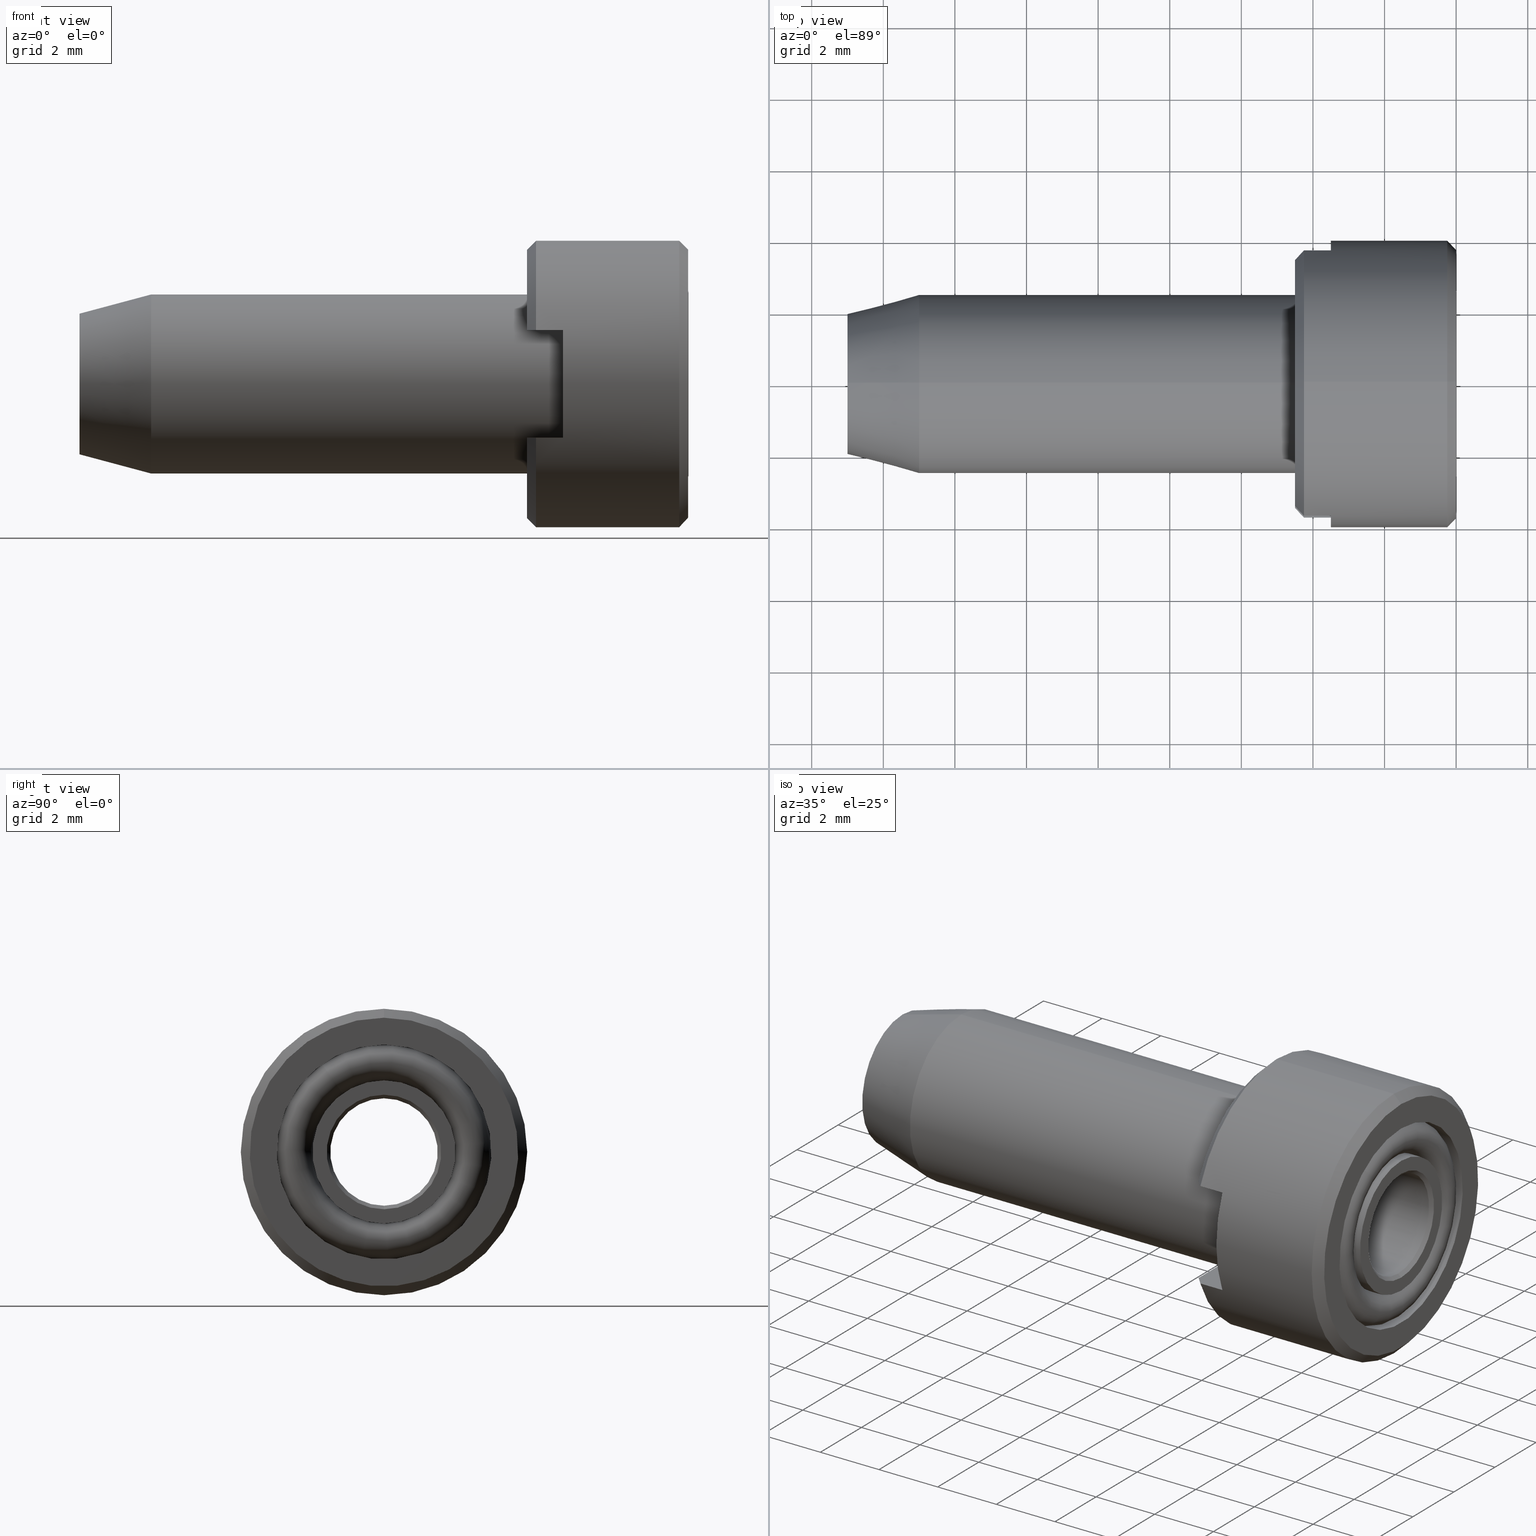
[diagram: canonical four-view strip — front | top / right | iso, engineering-drawing reading convention]
A machine part, canonical four-view strip (front | top / right | iso — engineering-drawing reading convention). The complete STEP part file that produces these views, byte-faithful:
ISO-10303-21;
HEADER;
FILE_DESCRIPTION( ( 'Unknown' ), '1' );
FILE_NAME( 'C:/Users/bkuehnle/Desktop/Homepage/721125000-A.stp', 'Unknown', ( 'Unknown' ), ( 'Unknown' ), 'PSStep 15.0.49', 'Unknown', '  ' );
FILE_SCHEMA( ( 'AUTOMOTIVE_DESIGN { 1 0 10303 214 1 1 1 1 }' ) );
ENDSEC;
DATA;
#1 = PRODUCT_DEFINITION_CONTEXT( '', #26, 'design' );
#2 = APPLICATION_PROTOCOL_DEFINITION( 'international standard', 'automotive_design', 2001, #26 );
#3 = PRODUCT_CATEGORY_RELATIONSHIP( 'NONE', 'NONE', #27, #28 );
#4 = SHAPE_DEFINITION_REPRESENTATION( #29, #30 );
#5 = PRODUCT_CATEGORY_RELATIONSHIP( 'NONE', 'NONE', #27, #31 );
#6 = CONTEXT_DEPENDENT_SHAPE_REPRESENTATION( #32, #33 );
#7 = SHAPE_DEFINITION_REPRESENTATION( #34, #35 );
#8 = SHAPE_REPRESENTATION_RELATIONSHIP( 'NONE', 'NONE', #35, #36 );
#9 = PRODUCT_CATEGORY_RELATIONSHIP( 'NONE', 'NONE', #27, #37 );
#10 = CONTEXT_DEPENDENT_SHAPE_REPRESENTATION( #38, #39 );
#11 = SHAPE_DEFINITION_REPRESENTATION( #40, #41 );
#12 = SHAPE_REPRESENTATION_RELATIONSHIP( 'NONE', 'NONE', #41, #42 );
#13 = PRODUCT_CATEGORY_RELATIONSHIP( 'NONE', 'NONE', #27, #43 );
#14 = CONTEXT_DEPENDENT_SHAPE_REPRESENTATION( #44, #45 );
#15 = SHAPE_DEFINITION_REPRESENTATION( #46, #47 );
#16 = SHAPE_REPRESENTATION_RELATIONSHIP( 'NONE', 'NONE', #47, #48 );
#17 = PRODUCT_CATEGORY_RELATIONSHIP( 'NONE', 'NONE', #27, #49 );
#18 = CONTEXT_DEPENDENT_SHAPE_REPRESENTATION( #50, #51 );
#19 = SHAPE_DEFINITION_REPRESENTATION( #52, #53 );
#20 = SHAPE_REPRESENTATION_RELATIONSHIP( 'NONE', 'NONE', #53, #54 );
#21 = MECHANICAL_DESIGN_GEOMETRIC_PRESENTATION_REPRESENTATION( ' ', ( #55, #56, #57, #58, #59, #60, #61, #62, #63, #64, #65, #66, #67, #68, #69, #70, #71, #72, #73, #74, #75, #76, #77, #78, #79, #80, #81, #82, #83, #84, #85, #86, #87 ), #22 );
#22 =  ( GEOMETRIC_REPRESENTATION_CONTEXT( 3 )GLOBAL_UNCERTAINTY_ASSIGNED_CONTEXT( ( #90 ) )GLOBAL_UNIT_ASSIGNED_CONTEXT( ( #92, #93, #94 ) )REPRESENTATION_CONTEXT( 'NONE', 'WORKSPACE' ) );
#26 = APPLICATION_CONTEXT( 'core data for automotive mechanical design processes' );
#27 = PRODUCT_CATEGORY( 'part', 'NONE' );
#28 = PRODUCT_RELATED_PRODUCT_CATEGORY( 'detail', ' ', ( #96 ) );
#29 = PRODUCT_DEFINITION_SHAPE( 'NONE', 'NONE', #97 );
#30 = SHAPE_REPRESENTATION( 'Assem1', ( #98, #99, #100, #101, #102 ), #103 );
#31 = PRODUCT_RELATED_PRODUCT_CATEGORY( 'detail', ' ', ( #104 ) );
#32 = ( REPRESENTATION_RELATIONSHIP( '', '', #35, #30 )REPRESENTATION_RELATIONSHIP_WITH_TRANSFORMATION( #107 )SHAPE_REPRESENTATION_RELATIONSHIP(  ) );
#33 = PRODUCT_DEFINITION_SHAPE( 'NAUO-PROD-DEF', 'NAUO-PROD-DEF', #109 );
#34 = PRODUCT_DEFINITION_SHAPE( 'NONE', 'NONE', #110 );
#35 = SHAPE_REPRESENTATION( '0012560', ( #98 ), #103 );
#36 = ADVANCED_BREP_SHAPE_REPRESENTATION( '0012560', ( #111 ), #22 );
#37 = PRODUCT_RELATED_PRODUCT_CATEGORY( 'detail', ' ', ( #112 ) );
#38 = ( REPRESENTATION_RELATIONSHIP( '', '', #41, #30 )REPRESENTATION_RELATIONSHIP_WITH_TRANSFORMATION( #115 )SHAPE_REPRESENTATION_RELATIONSHIP(  ) );
#39 = PRODUCT_DEFINITION_SHAPE( 'NAUO-PROD-DEF', 'NAUO-PROD-DEF', #117 );
#40 = PRODUCT_DEFINITION_SHAPE( 'NONE', 'NONE', #118 );
#41 = SHAPE_REPRESENTATION( '0012561', ( #98 ), #103 );
#42 = ADVANCED_BREP_SHAPE_REPRESENTATION( '0012561', ( #119 ), #22 );
#43 = PRODUCT_RELATED_PRODUCT_CATEGORY( 'detail', ' ', ( #120 ) );
#44 = ( REPRESENTATION_RELATIONSHIP( '', '', #47, #30 )REPRESENTATION_RELATIONSHIP_WITH_TRANSFORMATION( #123 )SHAPE_REPRESENTATION_RELATIONSHIP(  ) );
#45 = PRODUCT_DEFINITION_SHAPE( 'NAUO-PROD-DEF', 'NAUO-PROD-DEF', #125 );
#46 = PRODUCT_DEFINITION_SHAPE( 'NONE', 'NONE', #126 );
#47 = SHAPE_REPRESENTATION( '0012563', ( #98 ), #103 );
#48 = ADVANCED_BREP_SHAPE_REPRESENTATION( '0012563', ( #127 ), #22 );
#49 = PRODUCT_RELATED_PRODUCT_CATEGORY( 'detail', ' ', ( #128 ) );
#50 = ( REPRESENTATION_RELATIONSHIP( '', '', #53, #30 )REPRESENTATION_RELATIONSHIP_WITH_TRANSFORMATION( #131 )SHAPE_REPRESENTATION_RELATIONSHIP(  ) );
#51 = PRODUCT_DEFINITION_SHAPE( 'NAUO-PROD-DEF', 'NAUO-PROD-DEF', #133 );
#52 = PRODUCT_DEFINITION_SHAPE( 'NONE', 'NONE', #134 );
#53 = SHAPE_REPRESENTATION( '0012564', ( #98 ), #103 );
#54 = ADVANCED_BREP_SHAPE_REPRESENTATION( '0012564', ( #135 ), #22 );
#55 = STYLED_ITEM( '', ( #136 ), #137 );
#56 = STYLED_ITEM( '', ( #138 ), #139 );
#57 = STYLED_ITEM( '', ( #140 ), #141 );
#58 = STYLED_ITEM( '', ( #142 ), #143 );
#59 = STYLED_ITEM( '', ( #144 ), #145 );
#60 = STYLED_ITEM( '', ( #146 ), #147 );
#61 = STYLED_ITEM( '', ( #148 ), #149 );
#62 = STYLED_ITEM( '', ( #150 ), #151 );
#63 = STYLED_ITEM( '', ( #152 ), #153 );
#64 = STYLED_ITEM( '', ( #154 ), #155 );
#65 = STYLED_ITEM( '', ( #156 ), #157 );
#66 = STYLED_ITEM( '', ( #158 ), #159 );
#67 = STYLED_ITEM( '', ( #160 ), #161 );
#68 = STYLED_ITEM( '', ( #162 ), #163 );
#69 = STYLED_ITEM( '', ( #164 ), #165 );
#70 = STYLED_ITEM( '', ( #166 ), #167 );
#71 = STYLED_ITEM( '', ( #168 ), #169 );
#72 = STYLED_ITEM( '', ( #170 ), #171 );
#73 = STYLED_ITEM( '', ( #172 ), #173 );
#74 = STYLED_ITEM( '', ( #174 ), #175 );
#75 = STYLED_ITEM( '', ( #176 ), #177 );
#76 = STYLED_ITEM( '', ( #178 ), #179 );
#77 = STYLED_ITEM( '', ( #180 ), #181 );
#78 = STYLED_ITEM( '', ( #182 ), #183 );
#79 = STYLED_ITEM( '', ( #184 ), #185 );
#80 = STYLED_ITEM( '', ( #186 ), #187 );
#81 = STYLED_ITEM( '', ( #188 ), #189 );
#82 = STYLED_ITEM( '', ( #190 ), #191 );
#83 = STYLED_ITEM( '', ( #192 ), #193 );
#84 = STYLED_ITEM( '', ( #194 ), #195 );
#85 = STYLED_ITEM( '', ( #196 ), #197 );
#86 = STYLED_ITEM( '', ( #198 ), #199 );
#87 = STYLED_ITEM( '', ( #200 ), #201 );
#90 = UNCERTAINTY_MEASURE_WITH_UNIT( LENGTH_MEASURE( 0.00100000000000000 ), #92, '', '' );
#92 =  ( CONVERSION_BASED_UNIT( 'MILLIMETRE', #204 )LENGTH_UNIT(  )NAMED_UNIT( #207 ) );
#93 =  ( NAMED_UNIT( #209 )PLANE_ANGLE_UNIT(  )SI_UNIT( $, .RADIAN. ) );
#94 =  ( NAMED_UNIT( #209 )SI_UNIT( $, .STERADIAN. )SOLID_ANGLE_UNIT(  ) );
#96 = PRODUCT( 'Assem1', 'Assem1', 'PART-Assem1-DESC', ( #215 ) );
#97 = PRODUCT_DEFINITION( 'NONE', 'NONE', #216, #1 );
#98 = AXIS2_PLACEMENT_3D( '', #217, #218, #219 );
#99 = AXIS2_PLACEMENT_3D( '', #220, #221, #222 );
#100 = AXIS2_PLACEMENT_3D( '', #223, #224, #225 );
#101 = AXIS2_PLACEMENT_3D( '', #226, #227, #228 );
#102 = AXIS2_PLACEMENT_3D( '', #229, #230, #231 );
#103 =  ( GEOMETRIC_REPRESENTATION_CONTEXT( 3 )GLOBAL_UNCERTAINTY_ASSIGNED_CONTEXT( ( #234 ) )GLOBAL_UNIT_ASSIGNED_CONTEXT( ( #236, #237, #238 ) )REPRESENTATION_CONTEXT( 'NONE', 'WORKSPACE' ) );
#104 = PRODUCT( '0012560', '0012560', 'PART-0012560-DESC', ( #215 ) );
#107 = ITEM_DEFINED_TRANSFORMATION( '', '', #98, #99 );
#109 = NEXT_ASSEMBLY_USAGE_OCCURRENCE( 'NAUO1', 'NAUO1', 'NAUO1', #97, #110, $ );
#110 = PRODUCT_DEFINITION( '0012560', '0012560', #240, #1 );
#111 = MANIFOLD_SOLID_BREP( '0012560', #241 );
#112 = PRODUCT( '0012561', '0012561', 'PART-0012561-DESC', ( #215 ) );
#115 = ITEM_DEFINED_TRANSFORMATION( '', '', #98, #100 );
#117 = NEXT_ASSEMBLY_USAGE_OCCURRENCE( 'NAUO2', 'NAUO2', 'NAUO2', #97, #118, $ );
#118 = PRODUCT_DEFINITION( '0012561', '0012561', #242, #1 );
#119 = MANIFOLD_SOLID_BREP( '0012561', #243 );
#120 = PRODUCT( '0012563', '0012563', 'PART-0012563-DESC', ( #215 ) );
#123 = ITEM_DEFINED_TRANSFORMATION( '', '', #98, #101 );
#125 = NEXT_ASSEMBLY_USAGE_OCCURRENCE( 'NAUO3', 'NAUO3', 'NAUO3', #97, #126, $ );
#126 = PRODUCT_DEFINITION( '0012563', '0012563', #244, #1 );
#127 = MANIFOLD_SOLID_BREP( '0012563', #245 );
#128 = PRODUCT( '0012564', '0012564', 'PART-0012564-DESC', ( #215 ) );
#131 = ITEM_DEFINED_TRANSFORMATION( '', '', #98, #102 );
#133 = NEXT_ASSEMBLY_USAGE_OCCURRENCE( 'NAUO4', 'NAUO4', 'NAUO4', #97, #134, $ );
#134 = PRODUCT_DEFINITION( '0012564', '0012564', #246, #1 );
#135 = MANIFOLD_SOLID_BREP( '0012564', #247 );
#136 = PRESENTATION_STYLE_ASSIGNMENT( ( #248 ) );
#137 = ADVANCED_FACE( '', ( #249 ), #250, .T. );
#138 = PRESENTATION_STYLE_ASSIGNMENT( ( #251 ) );
#139 = ADVANCED_FACE( '', ( #252 ), #253, .T. );
#140 = PRESENTATION_STYLE_ASSIGNMENT( ( #254 ) );
#141 = ADVANCED_FACE( '', ( #255 ), #256, .T. );
#142 = PRESENTATION_STYLE_ASSIGNMENT( ( #257 ) );
#143 = ADVANCED_FACE( '', ( #258, #259 ), #260, .T. );
#144 = PRESENTATION_STYLE_ASSIGNMENT( ( #261 ) );
#145 = ADVANCED_FACE( '', ( #262, #263 ), #264, .T. );
#146 = PRESENTATION_STYLE_ASSIGNMENT( ( #265 ) );
#147 = ADVANCED_FACE( '', ( #266, #267 ), #268, .F. );
#148 = PRESENTATION_STYLE_ASSIGNMENT( ( #269 ) );
#149 = ADVANCED_FACE( '', ( #270 ), #271, .F. );
#150 = PRESENTATION_STYLE_ASSIGNMENT( ( #272 ) );
#151 = ADVANCED_FACE( '', ( #273, #274 ), #275, .T. );
#152 = PRESENTATION_STYLE_ASSIGNMENT( ( #276 ) );
#153 = ADVANCED_FACE( '', ( #277 ), #278, .T. );
#154 = PRESENTATION_STYLE_ASSIGNMENT( ( #279 ) );
#155 = ADVANCED_FACE( '', ( #280, #281 ), #282, .T. );
#156 = PRESENTATION_STYLE_ASSIGNMENT( ( #283 ) );
#157 = ADVANCED_FACE( '', ( #284 ), #285, .F. );
#158 = PRESENTATION_STYLE_ASSIGNMENT( ( #286 ) );
#159 = ADVANCED_FACE( '', ( #287, #288 ), #289, .T. );
#160 = PRESENTATION_STYLE_ASSIGNMENT( ( #290 ) );
#161 = ADVANCED_FACE( '', ( #291 ), #292, .T. );
#162 = PRESENTATION_STYLE_ASSIGNMENT( ( #293 ) );
#163 = ADVANCED_FACE( '', ( #294, #295 ), #296, .F. );
#164 = PRESENTATION_STYLE_ASSIGNMENT( ( #297 ) );
#165 = ADVANCED_FACE( '', ( #298, #299 ), #300, .T. );
#166 = PRESENTATION_STYLE_ASSIGNMENT( ( #301 ) );
#167 = ADVANCED_FACE( '', ( #302, #303 ), #304, .F. );
#168 = PRESENTATION_STYLE_ASSIGNMENT( ( #305 ) );
#169 = ADVANCED_FACE( '', ( #306, #307 ), #308, .T. );
#170 = PRESENTATION_STYLE_ASSIGNMENT( ( #309 ) );
#171 = ADVANCED_FACE( '', ( #310 ), #311, .F. );
#172 = PRESENTATION_STYLE_ASSIGNMENT( ( #312 ) );
#173 = ADVANCED_FACE( '', ( #313 ), #314, .T. );
#174 = PRESENTATION_STYLE_ASSIGNMENT( ( #315 ) );
#175 = ADVANCED_FACE( '', ( #316 ), #317, .T. );
#176 = PRESENTATION_STYLE_ASSIGNMENT( ( #318 ) );
#177 = ADVANCED_FACE( '', ( #319, #320 ), #321, .T. );
#178 = PRESENTATION_STYLE_ASSIGNMENT( ( #322 ) );
#179 = ADVANCED_FACE( '', ( #323, #324 ), #325, .F. );
#180 = PRESENTATION_STYLE_ASSIGNMENT( ( #326 ) );
#181 = ADVANCED_FACE( '', ( #327, #328 ), #329, .T. );
#182 = PRESENTATION_STYLE_ASSIGNMENT( ( #330 ) );
#183 = ADVANCED_FACE( '', ( #331, #332 ), #333, .T. );
#184 = PRESENTATION_STYLE_ASSIGNMENT( ( #334 ) );
#185 = ADVANCED_FACE( '', ( #335, #336 ), #337, .F. );
#186 = PRESENTATION_STYLE_ASSIGNMENT( ( #338 ) );
#187 = ADVANCED_FACE( '', ( #339, #340 ), #341, .T. );
#188 = PRESENTATION_STYLE_ASSIGNMENT( ( #342 ) );
#189 = ADVANCED_FACE( '', ( #343, #344 ), #345, .F. );
#190 = PRESENTATION_STYLE_ASSIGNMENT( ( #346 ) );
#191 = ADVANCED_FACE( '', ( #347, #348 ), #349, .T. );
#192 = PRESENTATION_STYLE_ASSIGNMENT( ( #350 ) );
#193 = ADVANCED_FACE( '', ( #351 ), #352, .T. );
#194 = PRESENTATION_STYLE_ASSIGNMENT( ( #353 ) );
#195 = ADVANCED_FACE( '', ( #354, #355 ), #356, .T. );
#196 = PRESENTATION_STYLE_ASSIGNMENT( ( #357 ) );
#197 = ADVANCED_FACE( '', ( #358, #359 ), #360, .T. );
#198 = PRESENTATION_STYLE_ASSIGNMENT( ( #361 ) );
#199 = ADVANCED_FACE( '', ( #362 ), #363, .F. );
#200 = PRESENTATION_STYLE_ASSIGNMENT( ( #364 ) );
#201 = ADVANCED_FACE( '', ( #365, #366 ), #367, .F. );
#204 = LENGTH_MEASURE_WITH_UNIT( LENGTH_MEASURE( 1.00000000000000 ), #368 );
#207 = DIMENSIONAL_EXPONENTS( 1.00000000000000, 0.000000000000000, 0.000000000000000, 0.000000000000000, 0.000000000000000, 0.000000000000000, 0.000000000000000 );
#209 = DIMENSIONAL_EXPONENTS( 0.000000000000000, 0.000000000000000, 0.000000000000000, 0.000000000000000, 0.000000000000000, 0.000000000000000, 0.000000000000000 );
#215 = PRODUCT_CONTEXT( '', #26, 'mechanical' );
#216 = PRODUCT_DEFINITION_FORMATION_WITH_SPECIFIED_SOURCE( ' ', 'NONE', #96, .NOT_KNOWN. );
#217 = CARTESIAN_POINT( '', ( 0.000000000000000, 0.000000000000000, 0.000000000000000 ) );
#218 = DIRECTION( '', ( 0.000000000000000, 0.000000000000000, 1.00000000000000 ) );
#219 = DIRECTION( '', ( 1.00000000000000, 0.000000000000000, 0.000000000000000 ) );
#220 = CARTESIAN_POINT( '', ( 0.000000000000000, 0.000000000000000, 0.000000000000000 ) );
#221 = DIRECTION( '', ( 0.000000000000000, 0.000000000000000, 1.00000000000000 ) );
#222 = DIRECTION( '', ( 1.00000000000000, 0.000000000000000, 0.000000000000000 ) );
#223 = CARTESIAN_POINT( '', ( 0.000000000000000, 0.000000000000000, 0.000000000000000 ) );
#224 = DIRECTION( '', ( 0.000000000000000, 0.000000000000000, 1.00000000000000 ) );
#225 = DIRECTION( '', ( 1.00000000000000, 0.000000000000000, 0.000000000000000 ) );
#226 = CARTESIAN_POINT( '', ( -0.486271238164264, 0.000000000000000, 1.73472347597680E-015 ) );
#227 = DIRECTION( '', ( 5.15049789679587E-017, -0.577350269189626, 0.816496580927726 ) );
#228 = DIRECTION( '', ( 1.00000000000000, 1.37793179065645E-017, -5.33370097102821E-017 ) );
#229 = CARTESIAN_POINT( '', ( -2.24479453272485, 8.67361737988404E-016, 0.000000000000000 ) );
#230 = DIRECTION( '', ( 5.15049789679587E-017, -0.577350269189626, 0.816496580927726 ) );
#231 = DIRECTION( '', ( 1.00000000000000, 1.37793179065645E-017, -5.33370097102821E-017 ) );
#234 = UNCERTAINTY_MEASURE_WITH_UNIT( LENGTH_MEASURE( 0.00100000000000000 ), #236, '', '' );
#236 =  ( CONVERSION_BASED_UNIT( 'MILLIMETRE', #371 )LENGTH_UNIT(  )NAMED_UNIT( #374 ) );
#237 =  ( NAMED_UNIT( #376 )PLANE_ANGLE_UNIT(  )SI_UNIT( $, .RADIAN. ) );
#238 =  ( NAMED_UNIT( #376 )SI_UNIT( $, .STERADIAN. )SOLID_ANGLE_UNIT(  ) );
#240 = PRODUCT_DEFINITION_FORMATION_WITH_SPECIFIED_SOURCE( ' ', 'NONE', #104, .NOT_KNOWN. );
#241 = CLOSED_SHELL( '', ( #165, #183, #169, #167, #159, #179, #189, #181, #145, #151, #197, #177, #187, #191, #195 ) );
#242 = PRODUCT_DEFINITION_FORMATION_WITH_SPECIFIED_SOURCE( ' ', 'NONE', #112, .NOT_KNOWN. );
#243 = CLOSED_SHELL( '', ( #153, #175, #155, #147, #201, #185, #163, #149, #199, #157, #171, #141, #143, #173, #193, #161 ) );
#244 = PRODUCT_DEFINITION_FORMATION_WITH_SPECIFIED_SOURCE( ' ', 'NONE', #120, .NOT_KNOWN. );
#245 = CLOSED_SHELL( '', ( #137 ) );
#246 = PRODUCT_DEFINITION_FORMATION_WITH_SPECIFIED_SOURCE( ' ', 'NONE', #128, .NOT_KNOWN. );
#247 = CLOSED_SHELL( '', ( #139 ) );
#248 = SURFACE_STYLE_USAGE( .BOTH., #382 );
#249 = FACE_BOUND( '', #383, .T. );
#250 = TOROIDAL_SURFACE( '', #384, 2.50000000000000, 0.500000000000000 );
#251 = SURFACE_STYLE_USAGE( .BOTH., #385 );
#252 = FACE_BOUND( '', #386, .T. );
#253 = TOROIDAL_SURFACE( '', #387, 2.75000000000000, 0.250000000000000 );
#254 = SURFACE_STYLE_USAGE( .BOTH., #388 );
#255 = FACE_OUTER_BOUND( '', #389, .T. );
#256 = PLANE( '', #390 );
#257 = SURFACE_STYLE_USAGE( .BOTH., #391 );
#258 = FACE_BOUND( '', #392, .T. );
#259 = FACE_OUTER_BOUND( '', #393, .T. );
#260 = CONICAL_SURFACE( '', #394, 4.00000000000000, 0.785398163397448 );
#261 = SURFACE_STYLE_USAGE( .BOTH., #395 );
#262 = FACE_OUTER_BOUND( '', #396, .T. );
#263 = FACE_OUTER_BOUND( '', #397, .T. );
#264 = CYLINDRICAL_SURFACE( '', #398, 3.00000000000000 );
#265 = SURFACE_STYLE_USAGE( .BOTH., #399 );
#266 = FACE_OUTER_BOUND( '', #400, .T. );
#267 = FACE_BOUND( '', #401, .T. );
#268 = PLANE( '', #402 );
#269 = SURFACE_STYLE_USAGE( .BOTH., #403 );
#270 = FACE_OUTER_BOUND( '', #404, .T. );
#271 = PLANE( '', #405 );
#272 = SURFACE_STYLE_USAGE( .BOTH., #406 );
#273 = FACE_OUTER_BOUND( '', #407, .T. );
#274 = FACE_BOUND( '', #408, .T. );
#275 = PLANE( '', #409 );
#276 = SURFACE_STYLE_USAGE( .BOTH., #410 );
#277 = FACE_OUTER_BOUND( '', #411, .T. );
#278 = PLANE( '', #412 );
#279 = SURFACE_STYLE_USAGE( .BOTH., #413 );
#280 = FACE_OUTER_BOUND( '', #414, .T. );
#281 = FACE_OUTER_BOUND( '', #415, .T. );
#282 = CYLINDRICAL_SURFACE( '', #416, 4.00000000000000 );
#283 = SURFACE_STYLE_USAGE( .BOTH., #417 );
#284 = FACE_OUTER_BOUND( '', #418, .T. );
#285 = PLANE( '', #419 );
#286 = SURFACE_STYLE_USAGE( .BOTH., #420 );
#287 = FACE_BOUND( '', #421, .T. );
#288 = FACE_OUTER_BOUND( '', #422, .T. );
#289 = PLANE( '', #423 );
#290 = SURFACE_STYLE_USAGE( .BOTH., #424 );
#291 = FACE_OUTER_BOUND( '', #425, .T. );
#292 = PLANE( '', #426 );
#293 = SURFACE_STYLE_USAGE( .BOTH., #427 );
#294 = FACE_OUTER_BOUND( '', #428, .T. );
#295 = FACE_OUTER_BOUND( '', #429, .T. );
#296 = CYLINDRICAL_SURFACE( '', #430, 2.50000000000000 );
#297 = SURFACE_STYLE_USAGE( .BOTH., #431 );
#298 = FACE_BOUND( '', #432, .T. );
#299 = FACE_OUTER_BOUND( '', #433, .T. );
#300 = PLANE( '', #434 );
#301 = SURFACE_STYLE_USAGE( .BOTH., #435 );
#302 = FACE_OUTER_BOUND( '', #436, .T. );
#303 = FACE_OUTER_BOUND( '', #437, .T. );
#304 = CYLINDRICAL_SURFACE( '', #438, 1.50000000000000 );
#305 = SURFACE_STYLE_USAGE( .BOTH., #439 );
#306 = FACE_OUTER_BOUND( '', #440, .T. );
#307 = FACE_OUTER_BOUND( '', #441, .T. );
#308 = CYLINDRICAL_SURFACE( '', #442, 2.00000000000000 );
#309 = SURFACE_STYLE_USAGE( .BOTH., #443 );
#310 = FACE_OUTER_BOUND( '', #444, .T. );
#311 = PLANE( '', #445 );
#312 = SURFACE_STYLE_USAGE( .BOTH., #446 );
#313 = FACE_OUTER_BOUND( '', #447, .T. );
#314 = CONICAL_SURFACE( '', #448, 3.75000000000000, 0.785398163397448 );
#315 = SURFACE_STYLE_USAGE( .BOTH., #449 );
#316 = FACE_OUTER_BOUND( '', #450, .T. );
#317 = PLANE( '', #451 );
#318 = SURFACE_STYLE_USAGE( .BOTH., #452 );
#319 = FACE_OUTER_BOUND( '', #453, .T. );
#320 = FACE_OUTER_BOUND( '', #454, .T. );
#321 = CYLINDRICAL_SURFACE( '', #455, 2.45000000000000 );
#322 = SURFACE_STYLE_USAGE( .BOTH., #456 );
#323 = FACE_OUTER_BOUND( '', #457, .T. );
#324 = FACE_BOUND( '', #458, .T. );
#325 = CONICAL_SURFACE( '', #459, 1.50000000000000, 0.785398163397434 );
#326 = SURFACE_STYLE_USAGE( .BOTH., #460 );
#327 = FACE_OUTER_BOUND( '', #461, .T. );
#328 = FACE_BOUND( '', #462, .T. );
#329 = CONICAL_SURFACE( '', #463, 2.90000000000000, 0.785398163397434 );
#330 = SURFACE_STYLE_USAGE( .BOTH., #464 );
#331 = FACE_BOUND( '', #465, .T. );
#332 = FACE_OUTER_BOUND( '', #466, .T. );
#333 = CONICAL_SURFACE( '', #467, 3.00000000000000, 0.785398163397467 );
#334 = SURFACE_STYLE_USAGE( .BOTH., #468 );
#335 = FACE_OUTER_BOUND( '', #469, .T. );
#336 = FACE_BOUND( '', #470, .T. );
#337 = PLANE( '', #471 );
#338 = SURFACE_STYLE_USAGE( .BOTH., #472 );
#339 = FACE_BOUND( '', #473, .T. );
#340 = FACE_OUTER_BOUND( '', #474, .T. );
#341 = CONICAL_SURFACE( '', #475, 2.50000000000000, 0.785398163397383 );
#342 = SURFACE_STYLE_USAGE( .BOTH., #476 );
#343 = FACE_BOUND( '', #477, .T. );
#344 = FACE_OUTER_BOUND( '', #478, .T. );
#345 = CONICAL_SURFACE( '', #479, 1.60000000000000, 0.785398163397434 );
#346 = SURFACE_STYLE_USAGE( .BOTH., #480 );
#347 = FACE_OUTER_BOUND( '', #481, .T. );
#348 = FACE_OUTER_BOUND( '', #482, .T. );
#349 = CYLINDRICAL_SURFACE( '', #483, 2.50000000000000 );
#350 = SURFACE_STYLE_USAGE( .BOTH., #484 );
#351 = FACE_OUTER_BOUND( '', #485, .T. );
#352 = CONICAL_SURFACE( '', #486, 3.75000000000000, 0.785398163397448 );
#353 = SURFACE_STYLE_USAGE( .BOTH., #487 );
#354 = FACE_OUTER_BOUND( '', #488, .T. );
#355 = FACE_BOUND( '', #489, .T. );
#356 = CONICAL_SURFACE( '', #490, 1.96410161513775, 0.261799387799149 );
#357 = SURFACE_STYLE_USAGE( .BOTH., #491 );
#358 = FACE_OUTER_BOUND( '', #492, .T. );
#359 = FACE_BOUND( '', #493, .T. );
#360 = PLANE( '', #494 );
#361 = SURFACE_STYLE_USAGE( .BOTH., #495 );
#362 = FACE_OUTER_BOUND( '', #496, .T. );
#363 = PLANE( '', #497 );
#364 = SURFACE_STYLE_USAGE( .BOTH., #498 );
#365 = FACE_OUTER_BOUND( '', #499, .T. );
#366 = FACE_OUTER_BOUND( '', #500, .T. );
#367 = CYLINDRICAL_SURFACE( '', #501, 3.00000000000000 );
#368 =  ( LENGTH_UNIT(  )NAMED_UNIT( #207 )SI_UNIT( .MILLI., .METRE. ) );
#371 = LENGTH_MEASURE_WITH_UNIT( LENGTH_MEASURE( 1.00000000000000 ), #503 );
#374 = DIMENSIONAL_EXPONENTS( 1.00000000000000, 0.000000000000000, 0.000000000000000, 0.000000000000000, 0.000000000000000, 0.000000000000000, 0.000000000000000 );
#376 = DIMENSIONAL_EXPONENTS( 0.000000000000000, 0.000000000000000, 0.000000000000000, 0.000000000000000, 0.000000000000000, 0.000000000000000, 0.000000000000000 );
#382 = SURFACE_SIDE_STYLE( '', ( #504 ) );
#383 = VERTEX_LOOP( '', #505 );
#384 = AXIS2_PLACEMENT_3D( '', #506, #507, #508 );
#385 = SURFACE_SIDE_STYLE( '', ( #509 ) );
#386 = VERTEX_LOOP( '', #510 );
#387 = AXIS2_PLACEMENT_3D( '', #511, #512, #513 );
#388 = SURFACE_SIDE_STYLE( '', ( #514 ) );
#389 = EDGE_LOOP( '', ( #515, #516, #517, #518, #519 ) );
#390 = AXIS2_PLACEMENT_3D( '', #520, #521, #522 );
#391 = SURFACE_SIDE_STYLE( '', ( #523 ) );
#392 = EDGE_LOOP( '', ( #524 ) );
#393 = EDGE_LOOP( '', ( #525 ) );
#394 = AXIS2_PLACEMENT_3D( '', #526, #527, #528 );
#395 = SURFACE_SIDE_STYLE( '', ( #529 ) );
#396 = EDGE_LOOP( '', ( #530 ) );
#397 = EDGE_LOOP( '', ( #531 ) );
#398 = AXIS2_PLACEMENT_3D( '', #532, #533, #534 );
#399 = SURFACE_SIDE_STYLE( '', ( #535 ) );
#400 = EDGE_LOOP( '', ( #536 ) );
#401 = EDGE_LOOP( '', ( #537 ) );
#402 = AXIS2_PLACEMENT_3D( '', #538, #539, #540 );
#403 = SURFACE_SIDE_STYLE( '', ( #541 ) );
#404 = EDGE_LOOP( '', ( #542, #543, #544, #545 ) );
#405 = AXIS2_PLACEMENT_3D( '', #546, #547, #548 );
#406 = SURFACE_SIDE_STYLE( '', ( #549 ) );
#407 = EDGE_LOOP( '', ( #550 ) );
#408 = EDGE_LOOP( '', ( #551 ) );
#409 = AXIS2_PLACEMENT_3D( '', #552, #553, #554 );
#410 = SURFACE_SIDE_STYLE( '', ( #555 ) );
#411 = EDGE_LOOP( '', ( #556, #557, #558, #559, #560 ) );
#412 = AXIS2_PLACEMENT_3D( '', #561, #562, #563 );
#413 = SURFACE_SIDE_STYLE( '', ( #564 ) );
#414 = EDGE_LOOP( '', ( #565 ) );
#415 = EDGE_LOOP( '', ( #566, #567, #568, #569, #570, #571, #572, #573 ) );
#416 = AXIS2_PLACEMENT_3D( '', #574, #575, #576 );
#417 = SURFACE_SIDE_STYLE( '', ( #577 ) );
#418 = EDGE_LOOP( '', ( #578, #579, #580, #581 ) );
#419 = AXIS2_PLACEMENT_3D( '', #582, #583, #584 );
#420 = SURFACE_SIDE_STYLE( '', ( #585 ) );
#421 = EDGE_LOOP( '', ( #586 ) );
#422 = EDGE_LOOP( '', ( #587 ) );
#423 = AXIS2_PLACEMENT_3D( '', #588, #589, #590 );
#424 = SURFACE_SIDE_STYLE( '', ( #591 ) );
#425 = EDGE_LOOP( '', ( #592, #593, #594, #595, #596 ) );
#426 = AXIS2_PLACEMENT_3D( '', #597, #598, #599 );
#427 = SURFACE_SIDE_STYLE( '', ( #600 ) );
#428 = EDGE_LOOP( '', ( #601 ) );
#429 = EDGE_LOOP( '', ( #602, #603, #604, #605, #606, #607, #608, #609 ) );
#430 = AXIS2_PLACEMENT_3D( '', #610, #611, #612 );
#431 = SURFACE_SIDE_STYLE( '', ( #613 ) );
#432 = EDGE_LOOP( '', ( #614 ) );
#433 = EDGE_LOOP( '', ( #615 ) );
#434 = AXIS2_PLACEMENT_3D( '', #616, #617, #618 );
#435 = SURFACE_SIDE_STYLE( '', ( #619 ) );
#436 = EDGE_LOOP( '', ( #620 ) );
#437 = EDGE_LOOP( '', ( #621 ) );
#438 = AXIS2_PLACEMENT_3D( '', #622, #623, #624 );
#439 = SURFACE_SIDE_STYLE( '', ( #625 ) );
#440 = EDGE_LOOP( '', ( #626 ) );
#441 = EDGE_LOOP( '', ( #627 ) );
#442 = AXIS2_PLACEMENT_3D( '', #628, #629, #630 );
#443 = SURFACE_SIDE_STYLE( '', ( #631 ) );
#444 = EDGE_LOOP( '', ( #632, #633, #634, #635 ) );
#445 = AXIS2_PLACEMENT_3D( '', #636, #637, #638 );
#446 = SURFACE_SIDE_STYLE( '', ( #639 ) );
#447 = EDGE_LOOP( '', ( #640, #641, #642, #643 ) );
#448 = AXIS2_PLACEMENT_3D( '', #644, #645, #646 );
#449 = SURFACE_SIDE_STYLE( '', ( #647 ) );
#450 = EDGE_LOOP( '', ( #648, #649, #650, #651, #652 ) );
#451 = AXIS2_PLACEMENT_3D( '', #653, #654, #655 );
#452 = SURFACE_SIDE_STYLE( '', ( #656 ) );
#453 = EDGE_LOOP( '', ( #657 ) );
#454 = EDGE_LOOP( '', ( #658 ) );
#455 = AXIS2_PLACEMENT_3D( '', #659, #660, #661 );
#456 = SURFACE_SIDE_STYLE( '', ( #662 ) );
#457 = EDGE_LOOP( '', ( #663 ) );
#458 = EDGE_LOOP( '', ( #664 ) );
#459 = AXIS2_PLACEMENT_3D( '', #665, #666, #667 );
#460 = SURFACE_SIDE_STYLE( '', ( #668 ) );
#461 = EDGE_LOOP( '', ( #669 ) );
#462 = EDGE_LOOP( '', ( #670 ) );
#463 = AXIS2_PLACEMENT_3D( '', #671, #672, #673 );
#464 = SURFACE_SIDE_STYLE( '', ( #674 ) );
#465 = EDGE_LOOP( '', ( #675 ) );
#466 = EDGE_LOOP( '', ( #676 ) );
#467 = AXIS2_PLACEMENT_3D( '', #677, #678, #679 );
#468 = SURFACE_SIDE_STYLE( '', ( #680 ) );
#469 = EDGE_LOOP( '', ( #681 ) );
#470 = EDGE_LOOP( '', ( #682 ) );
#471 = AXIS2_PLACEMENT_3D( '', #683, #684, #685 );
#472 = SURFACE_SIDE_STYLE( '', ( #686 ) );
#473 = EDGE_LOOP( '', ( #687 ) );
#474 = EDGE_LOOP( '', ( #688 ) );
#475 = AXIS2_PLACEMENT_3D( '', #689, #690, #691 );
#476 = SURFACE_SIDE_STYLE( '', ( #692 ) );
#477 = EDGE_LOOP( '', ( #693 ) );
#478 = EDGE_LOOP( '', ( #694 ) );
#479 = AXIS2_PLACEMENT_3D( '', #695, #696, #697 );
#480 = SURFACE_SIDE_STYLE( '', ( #698 ) );
#481 = EDGE_LOOP( '', ( #699 ) );
#482 = EDGE_LOOP( '', ( #700 ) );
#483 = AXIS2_PLACEMENT_3D( '', #701, #702, #703 );
#484 = SURFACE_SIDE_STYLE( '', ( #704 ) );
#485 = EDGE_LOOP( '', ( #705, #706, #707, #708 ) );
#486 = AXIS2_PLACEMENT_3D( '', #709, #710, #711 );
#487 = SURFACE_SIDE_STYLE( '', ( #712 ) );
#488 = EDGE_LOOP( '', ( #713 ) );
#489 = EDGE_LOOP( '', ( #714 ) );
#490 = AXIS2_PLACEMENT_3D( '', #715, #716, #717 );
#491 = SURFACE_SIDE_STYLE( '', ( #718 ) );
#492 = EDGE_LOOP( '', ( #719 ) );
#493 = EDGE_LOOP( '', ( #720 ) );
#494 = AXIS2_PLACEMENT_3D( '', #721, #722, #723 );
#495 = SURFACE_SIDE_STYLE( '', ( #724 ) );
#496 = EDGE_LOOP( '', ( #725, #726, #727, #728 ) );
#497 = AXIS2_PLACEMENT_3D( '', #729, #730, #731 );
#498 = SURFACE_SIDE_STYLE( '', ( #732 ) );
#499 = EDGE_LOOP( '', ( #733 ) );
#500 = EDGE_LOOP( '', ( #734 ) );
#501 = AXIS2_PLACEMENT_3D( '', #735, #736, #737 );
#503 =  ( LENGTH_UNIT(  )NAMED_UNIT( #374 )SI_UNIT( .MILLI., .METRE. ) );
#504 = SURFACE_STYLE_FILL_AREA( #739 );
#505 = VERTEX_POINT( '', #740 );
#506 = CARTESIAN_POINT( '', ( 0.000000000000000, 0.000000000000000, 0.000000000000000 ) );
#507 = DIRECTION( '', ( -1.00000000000000, 0.000000000000000, 0.000000000000000 ) );
#508 = DIRECTION( '', ( 0.000000000000000, 0.000000000000000, 1.00000000000000 ) );
#509 = SURFACE_STYLE_FILL_AREA( #741 );
#510 = VERTEX_POINT( '', #742 );
#511 = CARTESIAN_POINT( '', ( 0.000000000000000, 0.000000000000000, 0.000000000000000 ) );
#512 = DIRECTION( '', ( -1.00000000000000, 0.000000000000000, 0.000000000000000 ) );
#513 = DIRECTION( '', ( 0.000000000000000, 0.000000000000000, 1.00000000000000 ) );
#514 = SURFACE_STYLE_FILL_AREA( #743 );
#515 = ORIENTED_EDGE( '', *, *, #744, .T. );
#516 = ORIENTED_EDGE( '', *, *, #745, .F. );
#517 = ORIENTED_EDGE( '', *, *, #746, .F. );
#518 = ORIENTED_EDGE( '', *, *, #747, .T. );
#519 = ORIENTED_EDGE( '', *, *, #748, .T. );
#520 = CARTESIAN_POINT( '', ( -3.50000000000000, 22.5000000000000, 1.50000000000000 ) );
#521 = DIRECTION( '', ( 0.000000000000000, 0.000000000000000, -1.00000000000000 ) );
#522 = DIRECTION( '', ( -1.00000000000000, 0.000000000000000, 0.000000000000000 ) );
#523 = SURFACE_STYLE_FILL_AREA( #749 );
#524 = ORIENTED_EDGE( '', *, *, #750, .F. );
#525 = ORIENTED_EDGE( '', *, *, #751, .F. );
#526 = CARTESIAN_POINT( '', ( -0.250000000000000, 0.000000000000000, 0.000000000000000 ) );
#527 = DIRECTION( '', ( -1.00000000000000, 0.000000000000000, -0.000000000000000 ) );
#528 = DIRECTION( '', ( 0.000000000000000, 0.000000000000000, 1.00000000000000 ) );
#529 = SURFACE_STYLE_FILL_AREA( #752 );
#530 = ORIENTED_EDGE( '', *, *, #753, .T. );
#531 = ORIENTED_EDGE( '', *, *, #754, .T. );
#532 = CARTESIAN_POINT( '', ( -60.0000000000000, 0.000000000000000, 0.000000000000000 ) );
#533 = DIRECTION( '', ( 1.00000000000000, -0.000000000000000, -0.000000000000000 ) );
#534 = DIRECTION( '', ( 0.000000000000000, 0.000000000000000, 1.00000000000000 ) );
#535 = SURFACE_STYLE_FILL_AREA( #755 );
#536 = ORIENTED_EDGE( '', *, *, #750, .T. );
#537 = ORIENTED_EDGE( '', *, *, #756, .T. );
#538 = CARTESIAN_POINT( '', ( 0.000000000000000, 0.000000000000000, 3.00000000000000 ) );
#539 = DIRECTION( '', ( -1.00000000000000, 0.000000000000000, 0.000000000000000 ) );
#540 = DIRECTION( '', ( 0.000000000000000, 0.000000000000000, 1.00000000000000 ) );
#541 = SURFACE_STYLE_FILL_AREA( #757 );
#542 = ORIENTED_EDGE( '', *, *, #758, .T. );
#543 = ORIENTED_EDGE( '', *, *, #759, .T. );
#544 = ORIENTED_EDGE( '', *, *, #745, .T. );
#545 = ORIENTED_EDGE( '', *, *, #760, .F. );
#546 = CARTESIAN_POINT( '', ( -4.50000000000000, 0.000000000000000, 4.00000000000000 ) );
#547 = DIRECTION( '', ( 1.00000000000000, 0.000000000000000, 0.000000000000000 ) );
#548 = DIRECTION( '', ( 0.000000000000000, 0.000000000000000, -1.00000000000000 ) );
#549 = SURFACE_STYLE_FILL_AREA( #761 );
#550 = ORIENTED_EDGE( '', *, *, #762, .T. );
#551 = ORIENTED_EDGE( '', *, *, #763, .T. );
#552 = CARTESIAN_POINT( '', ( -1.00000000000000, 0.000000000000000, 3.00000000000000 ) );
#553 = DIRECTION( '', ( 1.00000000000000, 0.000000000000000, 0.000000000000000 ) );
#554 = DIRECTION( '', ( 0.000000000000000, 0.000000000000000, -1.00000000000000 ) );
#555 = SURFACE_STYLE_FILL_AREA( #764 );
#556 = ORIENTED_EDGE( '', *, *, #765, .T. );
#557 = ORIENTED_EDGE( '', *, *, #766, .T. );
#558 = ORIENTED_EDGE( '', *, *, #767, .T. );
#559 = ORIENTED_EDGE( '', *, *, #768, .F. );
#560 = ORIENTED_EDGE( '', *, *, #769, .F. );
#561 = CARTESIAN_POINT( '', ( -3.50000000000000, -22.5000000000000, -1.50000000000000 ) );
#562 = DIRECTION( '', ( 0.000000000000000, 0.000000000000000, 1.00000000000000 ) );
#563 = DIRECTION( '', ( 1.00000000000000, 0.000000000000000, 0.000000000000000 ) );
#564 = SURFACE_STYLE_FILL_AREA( #770 );
#565 = ORIENTED_EDGE( '', *, *, #751, .T. );
#566 = ORIENTED_EDGE( '', *, *, #747, .F. );
#567 = ORIENTED_EDGE( '', *, *, #771, .T. );
#568 = ORIENTED_EDGE( '', *, *, #772, .F. );
#569 = ORIENTED_EDGE( '', *, *, #773, .T. );
#570 = ORIENTED_EDGE( '', *, *, #774, .F. );
#571 = ORIENTED_EDGE( '', *, *, #775, .T. );
#572 = ORIENTED_EDGE( '', *, *, #767, .F. );
#573 = ORIENTED_EDGE( '', *, *, #776, .T. );
#574 = CARTESIAN_POINT( '', ( -60.0000000000000, 0.000000000000000, 0.000000000000000 ) );
#575 = DIRECTION( '', ( 1.00000000000000, -0.000000000000000, -0.000000000000000 ) );
#576 = DIRECTION( '', ( 0.000000000000000, 0.000000000000000, 1.00000000000000 ) );
#577 = SURFACE_STYLE_FILL_AREA( #777 );
#578 = ORIENTED_EDGE( '', *, *, #748, .F. );
#579 = ORIENTED_EDGE( '', *, *, #776, .F. );
#580 = ORIENTED_EDGE( '', *, *, #766, .F. );
#581 = ORIENTED_EDGE( '', *, *, #778, .F. );
#582 = CARTESIAN_POINT( '', ( -3.50000000000000, 0.000000000000000, 0.000000000000000 ) );
#583 = DIRECTION( '', ( 1.00000000000000, 0.000000000000000, 0.000000000000000 ) );
#584 = DIRECTION( '', ( 0.000000000000000, 0.000000000000000, -1.00000000000000 ) );
#585 = SURFACE_STYLE_FILL_AREA( #779 );
#586 = ORIENTED_EDGE( '', *, *, #780, .T. );
#587 = ORIENTED_EDGE( '', *, *, #781, .T. );
#588 = CARTESIAN_POINT( '', ( -17.0000000000000, 0.000000000000000, 1.50000000000000 ) );
#589 = DIRECTION( '', ( -1.00000000000000, 0.000000000000000, 0.000000000000000 ) );
#590 = DIRECTION( '', ( 0.000000000000000, 0.000000000000000, 1.00000000000000 ) );
#591 = SURFACE_STYLE_FILL_AREA( #782 );
#592 = ORIENTED_EDGE( '', *, *, #783, .T. );
#593 = ORIENTED_EDGE( '', *, *, #784, .F. );
#594 = ORIENTED_EDGE( '', *, *, #785, .F. );
#595 = ORIENTED_EDGE( '', *, *, #774, .T. );
#596 = ORIENTED_EDGE( '', *, *, #786, .T. );
#597 = CARTESIAN_POINT( '', ( -3.50000000000000, -22.5000000000000, -1.50000000000000 ) );
#598 = DIRECTION( '', ( 0.000000000000000, 0.000000000000000, 1.00000000000000 ) );
#599 = DIRECTION( '', ( 1.00000000000000, 0.000000000000000, 0.000000000000000 ) );
#600 = SURFACE_STYLE_FILL_AREA( #787 );
#601 = ORIENTED_EDGE( '', *, *, #788, .F. );
#602 = ORIENTED_EDGE( '', *, *, #789, .F. );
#603 = ORIENTED_EDGE( '', *, *, #760, .T. );
#604 = ORIENTED_EDGE( '', *, *, #744, .F. );
#605 = ORIENTED_EDGE( '', *, *, #778, .T. );
#606 = ORIENTED_EDGE( '', *, *, #765, .F. );
#607 = ORIENTED_EDGE( '', *, *, #790, .T. );
#608 = ORIENTED_EDGE( '', *, *, #783, .F. );
#609 = ORIENTED_EDGE( '', *, *, #791, .T. );
#610 = CARTESIAN_POINT( '', ( -60.0000000000000, 0.000000000000000, 0.000000000000000 ) );
#611 = DIRECTION( '', ( 1.00000000000000, -0.000000000000000, -0.000000000000000 ) );
#612 = DIRECTION( '', ( 0.000000000000000, 0.000000000000000, 1.00000000000000 ) );
#613 = SURFACE_STYLE_FILL_AREA( #792 );
#614 = ORIENTED_EDGE( '', *, *, #793, .T. );
#615 = ORIENTED_EDGE( '', *, *, #794, .F. );
#616 = CARTESIAN_POINT( '', ( 0.000000000000000, 0.000000000000000, 2.00000000000000 ) );
#617 = DIRECTION( '', ( 1.00000000000000, 0.000000000000000, 0.000000000000000 ) );
#618 = DIRECTION( '', ( 0.000000000000000, 0.000000000000000, -1.00000000000000 ) );
#619 = SURFACE_STYLE_FILL_AREA( #795 );
#620 = ORIENTED_EDGE( '', *, *, #796, .T. );
#621 = ORIENTED_EDGE( '', *, *, #797, .T. );
#622 = CARTESIAN_POINT( '', ( -60.0000000000000, 0.000000000000000, 0.000000000000000 ) );
#623 = DIRECTION( '', ( 1.00000000000000, -0.000000000000000, -0.000000000000000 ) );
#624 = DIRECTION( '', ( 0.000000000000000, 0.000000000000000, 1.00000000000000 ) );
#625 = SURFACE_STYLE_FILL_AREA( #798 );
#626 = ORIENTED_EDGE( '', *, *, #794, .T. );
#627 = ORIENTED_EDGE( '', *, *, #763, .F. );
#628 = CARTESIAN_POINT( '', ( -60.0000000000000, 0.000000000000000, 0.000000000000000 ) );
#629 = DIRECTION( '', ( 1.00000000000000, -0.000000000000000, -0.000000000000000 ) );
#630 = DIRECTION( '', ( 0.000000000000000, 0.000000000000000, 1.00000000000000 ) );
#631 = SURFACE_STYLE_FILL_AREA( #799 );
#632 = ORIENTED_EDGE( '', *, *, #786, .F. );
#633 = ORIENTED_EDGE( '', *, *, #773, .F. );
#634 = ORIENTED_EDGE( '', *, *, #800, .F. );
#635 = ORIENTED_EDGE( '', *, *, #791, .F. );
#636 = CARTESIAN_POINT( '', ( -3.50000000000000, 0.000000000000000, 0.000000000000000 ) );
#637 = DIRECTION( '', ( 1.00000000000000, 0.000000000000000, 0.000000000000000 ) );
#638 = DIRECTION( '', ( 0.000000000000000, 0.000000000000000, -1.00000000000000 ) );
#639 = SURFACE_STYLE_FILL_AREA( #801 );
#640 = ORIENTED_EDGE( '', *, *, #775, .F. );
#641 = ORIENTED_EDGE( '', *, *, #785, .T. );
#642 = ORIENTED_EDGE( '', *, *, #802, .F. );
#643 = ORIENTED_EDGE( '', *, *, #768, .T. );
#644 = CARTESIAN_POINT( '', ( -4.50000000000000, 0.000000000000000, 0.000000000000000 ) );
#645 = DIRECTION( '', ( 1.00000000000000, -0.000000000000000, 0.000000000000000 ) );
#646 = DIRECTION( '', ( 0.000000000000000, 0.000000000000000, -1.00000000000000 ) );
#647 = SURFACE_STYLE_FILL_AREA( #803 );
#648 = ORIENTED_EDGE( '', *, *, #789, .T. );
#649 = ORIENTED_EDGE( '', *, *, #800, .T. );
#650 = ORIENTED_EDGE( '', *, *, #772, .T. );
#651 = ORIENTED_EDGE( '', *, *, #804, .F. );
#652 = ORIENTED_EDGE( '', *, *, #758, .F. );
#653 = CARTESIAN_POINT( '', ( -3.50000000000000, 22.5000000000000, 1.50000000000000 ) );
#654 = DIRECTION( '', ( 0.000000000000000, 0.000000000000000, -1.00000000000000 ) );
#655 = DIRECTION( '', ( -1.00000000000000, 0.000000000000000, 0.000000000000000 ) );
#656 = SURFACE_STYLE_FILL_AREA( #805 );
#657 = ORIENTED_EDGE( '', *, *, #806, .T. );
#658 = ORIENTED_EDGE( '', *, *, #807, .F. );
#659 = CARTESIAN_POINT( '', ( -60.0000000000000, 0.000000000000000, 0.000000000000000 ) );
#660 = DIRECTION( '', ( 1.00000000000000, -0.000000000000000, -0.000000000000000 ) );
#661 = DIRECTION( '', ( 0.000000000000000, 0.000000000000000, 1.00000000000000 ) );
#662 = SURFACE_STYLE_FILL_AREA( #808 );
#663 = ORIENTED_EDGE( '', *, *, #780, .F. );
#664 = ORIENTED_EDGE( '', *, *, #796, .F. );
#665 = CARTESIAN_POINT( '', ( -16.9000000000000, 0.000000000000000, 0.000000000000000 ) );
#666 = DIRECTION( '', ( -1.00000000000000, 0.000000000000000, -0.000000000000000 ) );
#667 = DIRECTION( '', ( 0.000000000000000, 0.000000000000000, 1.00000000000000 ) );
#668 = SURFACE_STYLE_FILL_AREA( #809 );
#669 = ORIENTED_EDGE( '', *, *, #754, .F. );
#670 = ORIENTED_EDGE( '', *, *, #810, .F. );
#671 = CARTESIAN_POINT( '', ( -2.00000000000000, 0.000000000000000, 0.000000000000000 ) );
#672 = DIRECTION( '', ( 1.00000000000000, -0.000000000000000, 0.000000000000000 ) );
#673 = DIRECTION( '', ( 0.000000000000000, 0.000000000000000, -1.00000000000000 ) );
#674 = SURFACE_STYLE_FILL_AREA( #811 );
#675 = ORIENTED_EDGE( '', *, *, #762, .F. );
#676 = ORIENTED_EDGE( '', *, *, #753, .F. );
#677 = CARTESIAN_POINT( '', ( -1.10000000000000, 0.000000000000000, 0.000000000000000 ) );
#678 = DIRECTION( '', ( -1.00000000000000, 0.000000000000000, -0.000000000000000 ) );
#679 = DIRECTION( '', ( 0.000000000000000, 0.000000000000000, 1.00000000000000 ) );
#680 = SURFACE_STYLE_FILL_AREA( #812 );
#681 = ORIENTED_EDGE( '', *, *, #813, .F. );
#682 = ORIENTED_EDGE( '', *, *, #788, .T. );
#683 = CARTESIAN_POINT( '', ( -2.50000000000000, 0.000000000000000, 2.50000000000000 ) );
#684 = DIRECTION( '', ( -1.00000000000000, 0.000000000000000, 0.000000000000000 ) );
#685 = DIRECTION( '', ( 0.000000000000000, 0.000000000000000, 1.00000000000000 ) );
#686 = SURFACE_STYLE_FILL_AREA( #814 );
#687 = ORIENTED_EDGE( '', *, *, #807, .T. );
#688 = ORIENTED_EDGE( '', *, *, #815, .F. );
#689 = CARTESIAN_POINT( '', ( -3.00000000000000, 0.000000000000000, 0.000000000000000 ) );
#690 = DIRECTION( '', ( -1.00000000000000, 0.000000000000000, -0.000000000000000 ) );
#691 = DIRECTION( '', ( 0.000000000000000, 0.000000000000000, 1.00000000000000 ) );
#692 = SURFACE_STYLE_FILL_AREA( #816 );
#693 = ORIENTED_EDGE( '', *, *, #797, .F. );
#694 = ORIENTED_EDGE( '', *, *, #793, .F. );
#695 = CARTESIAN_POINT( '', ( 0.000000000000000, 0.000000000000000, 0.000000000000000 ) );
#696 = DIRECTION( '', ( 1.00000000000000, -0.000000000000000, 0.000000000000000 ) );
#697 = DIRECTION( '', ( 0.000000000000000, 0.000000000000000, -1.00000000000000 ) );
#698 = SURFACE_STYLE_FILL_AREA( #817 );
#699 = ORIENTED_EDGE( '', *, *, #815, .T. );
#700 = ORIENTED_EDGE( '', *, *, #818, .F. );
#701 = CARTESIAN_POINT( '', ( -60.0000000000000, 0.000000000000000, 0.000000000000000 ) );
#702 = DIRECTION( '', ( 1.00000000000000, -0.000000000000000, -0.000000000000000 ) );
#703 = DIRECTION( '', ( 0.000000000000000, 0.000000000000000, 1.00000000000000 ) );
#704 = SURFACE_STYLE_FILL_AREA( #819 );
#705 = ORIENTED_EDGE( '', *, *, #771, .F. );
#706 = ORIENTED_EDGE( '', *, *, #746, .T. );
#707 = ORIENTED_EDGE( '', *, *, #759, .F. );
#708 = ORIENTED_EDGE( '', *, *, #804, .T. );
#709 = CARTESIAN_POINT( '', ( -4.50000000000000, 0.000000000000000, 0.000000000000000 ) );
#710 = DIRECTION( '', ( 1.00000000000000, -0.000000000000000, 0.000000000000000 ) );
#711 = DIRECTION( '', ( 0.000000000000000, 0.000000000000000, -1.00000000000000 ) );
#712 = SURFACE_STYLE_FILL_AREA( #820 );
#713 = ORIENTED_EDGE( '', *, *, #818, .T. );
#714 = ORIENTED_EDGE( '', *, *, #781, .F. );
#715 = CARTESIAN_POINT( '', ( -17.0000000000000, 0.000000000000000, 0.000000000000000 ) );
#716 = DIRECTION( '', ( 1.00000000000000, -0.000000000000000, 0.000000000000000 ) );
#717 = DIRECTION( '', ( 0.000000000000000, 0.000000000000000, -1.00000000000000 ) );
#718 = SURFACE_STYLE_FILL_AREA( #821 );
#719 = ORIENTED_EDGE( '', *, *, #810, .T. );
#720 = ORIENTED_EDGE( '', *, *, #806, .F. );
#721 = CARTESIAN_POINT( '', ( -2.00000000000000, 0.000000000000000, 2.45000000000000 ) );
#722 = DIRECTION( '', ( -1.00000000000000, 0.000000000000000, 0.000000000000000 ) );
#723 = DIRECTION( '', ( 0.000000000000000, 0.000000000000000, 1.00000000000000 ) );
#724 = SURFACE_STYLE_FILL_AREA( #822 );
#725 = ORIENTED_EDGE( '', *, *, #769, .T. );
#726 = ORIENTED_EDGE( '', *, *, #802, .T. );
#727 = ORIENTED_EDGE( '', *, *, #784, .T. );
#728 = ORIENTED_EDGE( '', *, *, #790, .F. );
#729 = CARTESIAN_POINT( '', ( -4.50000000000000, 0.000000000000000, 4.00000000000000 ) );
#730 = DIRECTION( '', ( 1.00000000000000, 0.000000000000000, 0.000000000000000 ) );
#731 = DIRECTION( '', ( 0.000000000000000, 0.000000000000000, -1.00000000000000 ) );
#732 = SURFACE_STYLE_FILL_AREA( #823 );
#733 = ORIENTED_EDGE( '', *, *, #756, .F. );
#734 = ORIENTED_EDGE( '', *, *, #813, .T. );
#735 = CARTESIAN_POINT( '', ( -60.0000000000000, 0.000000000000000, 0.000000000000000 ) );
#736 = DIRECTION( '', ( 1.00000000000000, -0.000000000000000, -0.000000000000000 ) );
#737 = DIRECTION( '', ( 0.000000000000000, 0.000000000000000, 1.00000000000000 ) );
#739 = FILL_AREA_STYLE( '', ( #824 ) );
#740 = CARTESIAN_POINT( '', ( 0.000000000000000, 0.000000000000000, 3.00000000000000 ) );
#741 = FILL_AREA_STYLE( '', ( #825 ) );
#742 = CARTESIAN_POINT( '', ( 0.000000000000000, 0.000000000000000, 3.00000000000000 ) );
#743 = FILL_AREA_STYLE( '', ( #826 ) );
#744 = EDGE_CURVE( '', #827, #828, #829, .T. );
#745 = EDGE_CURVE( '', #830, #828, #831, .T. );
#746 = EDGE_CURVE( '', #832, #830, #833, .T. );
#747 = EDGE_CURVE( '', #832, #834, #835, .F. );
#748 = EDGE_CURVE( '', #834, #827, #836, .T. );
#749 = FILL_AREA_STYLE( '', ( #837 ) );
#750 = EDGE_CURVE( '', #838, #838, #839, .F. );
#751 = EDGE_CURVE( '', #840, #840, #841, .T. );
#752 = FILL_AREA_STYLE( '', ( #842 ) );
#753 = EDGE_CURVE( '', #843, #843, #844, .F. );
#754 = EDGE_CURVE( '', #845, #845, #846, .F. );
#755 = FILL_AREA_STYLE( '', ( #847 ) );
#756 = EDGE_CURVE( '', #848, #848, #849, .T. );
#757 = FILL_AREA_STYLE( '', ( #850 ) );
#758 = EDGE_CURVE( '', #851, #852, #853, .T. );
#759 = EDGE_CURVE( '', #852, #830, #854, .F. );
#760 = EDGE_CURVE( '', #851, #828, #855, .T. );
#761 = FILL_AREA_STYLE( '', ( #856 ) );
#762 = EDGE_CURVE( '', #857, #857, #858, .T. );
#763 = EDGE_CURVE( '', #859, #859, #860, .T. );
#764 = FILL_AREA_STYLE( '', ( #861 ) );
#765 = EDGE_CURVE( '', #862, #863, #864, .F. );
#766 = EDGE_CURVE( '', #863, #865, #866, .T. );
#767 = EDGE_CURVE( '', #865, #867, #868, .T. );
#768 = EDGE_CURVE( '', #869, #867, #870, .T. );
#769 = EDGE_CURVE( '', #862, #869, #871, .T. );
#770 = FILL_AREA_STYLE( '', ( #872 ) );
#771 = EDGE_CURVE( '', #832, #873, #874, .T. );
#772 = EDGE_CURVE( '', #875, #873, #876, .T. );
#773 = EDGE_CURVE( '', #875, #877, #878, .T. );
#774 = EDGE_CURVE( '', #879, #877, #880, .F. );
#775 = EDGE_CURVE( '', #879, #867, #881, .T. );
#776 = EDGE_CURVE( '', #865, #834, #882, .T. );
#777 = FILL_AREA_STYLE( '', ( #883 ) );
#778 = EDGE_CURVE( '', #827, #863, #884, .F. );
#779 = FILL_AREA_STYLE( '', ( #885 ) );
#780 = EDGE_CURVE( '', #886, #886, #887, .F. );
#781 = EDGE_CURVE( '', #888, #888, #889, .T. );
#782 = FILL_AREA_STYLE( '', ( #890 ) );
#783 = EDGE_CURVE( '', #891, #892, #893, .T. );
#784 = EDGE_CURVE( '', #894, #892, #895, .T. );
#785 = EDGE_CURVE( '', #879, #894, #896, .T. );
#786 = EDGE_CURVE( '', #877, #891, #897, .T. );
#787 = FILL_AREA_STYLE( '', ( #898 ) );
#788 = EDGE_CURVE( '', #899, #899, #900, .T. );
#789 = EDGE_CURVE( '', #851, #901, #902, .F. );
#790 = EDGE_CURVE( '', #862, #892, #903, .T. );
#791 = EDGE_CURVE( '', #891, #901, #904, .F. );
#792 = FILL_AREA_STYLE( '', ( #905 ) );
#793 = EDGE_CURVE( '', #906, #906, #907, .F. );
#794 = EDGE_CURVE( '', #908, #908, #909, .T. );
#795 = FILL_AREA_STYLE( '', ( #910 ) );
#796 = EDGE_CURVE( '', #911, #911, #912, .T. );
#797 = EDGE_CURVE( '', #913, #913, #914, .T. );
#798 = FILL_AREA_STYLE( '', ( #915 ) );
#799 = FILL_AREA_STYLE( '', ( #916 ) );
#800 = EDGE_CURVE( '', #901, #875, #917, .T. );
#801 = FILL_AREA_STYLE( '', ( #918 ) );
#802 = EDGE_CURVE( '', #869, #894, #919, .F. );
#803 = FILL_AREA_STYLE( '', ( #920 ) );
#804 = EDGE_CURVE( '', #852, #873, #921, .T. );
#805 = FILL_AREA_STYLE( '', ( #922 ) );
#806 = EDGE_CURVE( '', #923, #923, #924, .T. );
#807 = EDGE_CURVE( '', #925, #925, #926, .T. );
#808 = FILL_AREA_STYLE( '', ( #927 ) );
#809 = FILL_AREA_STYLE( '', ( #928 ) );
#810 = EDGE_CURVE( '', #929, #929, #930, .T. );
#811 = FILL_AREA_STYLE( '', ( #931 ) );
#812 = FILL_AREA_STYLE( '', ( #932 ) );
#813 = EDGE_CURVE( '', #933, #933, #934, .T. );
#814 = FILL_AREA_STYLE( '', ( #935 ) );
#815 = EDGE_CURVE( '', #936, #936, #937, .T. );
#816 = FILL_AREA_STYLE( '', ( #938 ) );
#817 = FILL_AREA_STYLE( '', ( #939 ) );
#818 = EDGE_CURVE( '', #940, #940, #941, .T. );
#819 = FILL_AREA_STYLE( '', ( #942 ) );
#820 = FILL_AREA_STYLE( '', ( #943 ) );
#821 = FILL_AREA_STYLE( '', ( #944 ) );
#822 = FILL_AREA_STYLE( '', ( #945 ) );
#823 = FILL_AREA_STYLE( '', ( #946 ) );
#824 = FILL_AREA_STYLE_COLOUR( '', #947 );
#825 = FILL_AREA_STYLE_COLOUR( '', #948 );
#826 = FILL_AREA_STYLE_COLOUR( '', #949 );
#827 = VERTEX_POINT( '', #950 );
#828 = VERTEX_POINT( '', #951 );
#829 = LINE( '', #952, #953 );
#830 = VERTEX_POINT( '', #954 );
#831 = LINE( '', #955, #956 );
#832 = VERTEX_POINT( '', #957 );
#833 = B_SPLINE_CURVE_WITH_KNOTS( '', 3, ( #958, #959, #960, #961 ), .UNSPECIFIED., .F., .F., ( 4, 4 ), ( 0.00690549877276442, 0.00727432095429745 ), .UNSPECIFIED. );
#834 = VERTEX_POINT( '', #962 );
#835 = LINE( '', #963, #964 );
#836 = LINE( '', #965, #966 );
#837 = FILL_AREA_STYLE_COLOUR( '', #967 );
#838 = VERTEX_POINT( '', #968 );
#839 = CIRCLE( '', #969, 3.75000000000000 );
#840 = VERTEX_POINT( '', #970 );
#841 = CIRCLE( '', #971, 4.00000000000000 );
#842 = FILL_AREA_STYLE_COLOUR( '', #972 );
#843 = VERTEX_POINT( '', #973 );
#844 = CIRCLE( '', #974, 3.00000000000000 );
#845 = VERTEX_POINT( '', #975 );
#846 = CIRCLE( '', #976, 3.00000000000000 );
#847 = FILL_AREA_STYLE_COLOUR( '', #977 );
#848 = VERTEX_POINT( '', #978 );
#849 = CIRCLE( '', #979, 3.00000000000000 );
#850 = FILL_AREA_STYLE_COLOUR( '', #980 );
#851 = VERTEX_POINT( '', #981 );
#852 = VERTEX_POINT( '', #982 );
#853 = LINE( '', #983, #984 );
#854 = CIRCLE( '', #985, 3.75000000000000 );
#855 = CIRCLE( '', #986, 2.50000000000000 );
#856 = FILL_AREA_STYLE_COLOUR( '', #987 );
#857 = VERTEX_POINT( '', #988 );
#858 = CIRCLE( '', #989, 2.90000000000000 );
#859 = VERTEX_POINT( '', #990 );
#860 = CIRCLE( '', #991, 2.00000000000000 );
#861 = FILL_AREA_STYLE_COLOUR( '', #992 );
#862 = VERTEX_POINT( '', #993 );
#863 = VERTEX_POINT( '', #994 );
#864 = LINE( '', #995, #996 );
#865 = VERTEX_POINT( '', #997 );
#866 = LINE( '', #998, #999 );
#867 = VERTEX_POINT( '', #1000 );
#868 = LINE( '', #1001, #1002 );
#869 = VERTEX_POINT( '', #1003 );
#870 = B_SPLINE_CURVE_WITH_KNOTS( '', 3, ( #1004, #1005, #1006, #1007 ), .UNSPECIFIED., .F., .F., ( 4, 4 ), ( 0.0155450273879748, 0.0159094868715006 ), .UNSPECIFIED. );
#871 = LINE( '', #1008, #1009 );
#872 = FILL_AREA_STYLE_COLOUR( '', #1010 );
#873 = VERTEX_POINT( '', #1011 );
#874 = CIRCLE( '', #1012, 4.00000000000000 );
#875 = VERTEX_POINT( '', #1013 );
#876 = LINE( '', #1014, #1015 );
#877 = VERTEX_POINT( '', #1016 );
#878 = CIRCLE( '', #1017, 4.00000000000000 );
#879 = VERTEX_POINT( '', #1018 );
#880 = LINE( '', #1019, #1020 );
#881 = CIRCLE( '', #1021, 4.00000000000000 );
#882 = CIRCLE( '', #1022, 4.00000000000000 );
#883 = FILL_AREA_STYLE_COLOUR( '', #1023 );
#884 = CIRCLE( '', #1024, 2.50000000000000 );
#885 = FILL_AREA_STYLE_COLOUR( '', #1025 );
#886 = VERTEX_POINT( '', #1026 );
#887 = CIRCLE( '', #1027, 1.60000000000000 );
#888 = VERTEX_POINT( '', #1028 );
#889 = CIRCLE( '', #1029, 1.96410161513775 );
#890 = FILL_AREA_STYLE_COLOUR( '', #1030 );
#891 = VERTEX_POINT( '', #1031 );
#892 = VERTEX_POINT( '', #1032 );
#893 = LINE( '', #1033, #1034 );
#894 = VERTEX_POINT( '', #1035 );
#895 = LINE( '', #1036, #1037 );
#896 = B_SPLINE_CURVE_WITH_KNOTS( '', 3, ( #1038, #1039, #1040, #1041 ), .UNSPECIFIED., .F., .F., ( 4, 4 ), ( 0.00690549877276443, 0.00727432095429745 ), .UNSPECIFIED. );
#897 = LINE( '', #1042, #1043 );
#898 = FILL_AREA_STYLE_COLOUR( '', #1044 );
#899 = VERTEX_POINT( '', #1045 );
#900 = CIRCLE( '', #1046, 2.50000000000000 );
#901 = VERTEX_POINT( '', #1047 );
#902 = LINE( '', #1048, #1049 );
#903 = CIRCLE( '', #1050, 2.50000000000000 );
#904 = CIRCLE( '', #1051, 2.50000000000000 );
#905 = FILL_AREA_STYLE_COLOUR( '', #1052 );
#906 = VERTEX_POINT( '', #1053 );
#907 = CIRCLE( '', #1054, 1.60000000000000 );
#908 = VERTEX_POINT( '', #1055 );
#909 = CIRCLE( '', #1056, 2.00000000000000 );
#910 = FILL_AREA_STYLE_COLOUR( '', #1057 );
#911 = VERTEX_POINT( '', #1058 );
#912 = CIRCLE( '', #1059, 1.50000000000000 );
#913 = VERTEX_POINT( '', #1060 );
#914 = CIRCLE( '', #1061, 1.50000000000000 );
#915 = FILL_AREA_STYLE_COLOUR( '', #1062 );
#916 = FILL_AREA_STYLE_COLOUR( '', #1063 );
#917 = LINE( '', #1064, #1065 );
#918 = FILL_AREA_STYLE_COLOUR( '', #1066 );
#919 = CIRCLE( '', #1067, 3.75000000000000 );
#920 = FILL_AREA_STYLE_COLOUR( '', #1068 );
#921 = B_SPLINE_CURVE_WITH_KNOTS( '', 3, ( #1069, #1070, #1071, #1072 ), .UNSPECIFIED., .F., .F., ( 4, 4 ), ( 0.0155450273879748, 0.0159094868715006 ), .UNSPECIFIED. );
#922 = FILL_AREA_STYLE_COLOUR( '', #1073 );
#923 = VERTEX_POINT( '', #1074 );
#924 = CIRCLE( '', #1075, 2.45000000000000 );
#925 = VERTEX_POINT( '', #1076 );
#926 = CIRCLE( '', #1077, 2.45000000000000 );
#927 = FILL_AREA_STYLE_COLOUR( '', #1078 );
#928 = FILL_AREA_STYLE_COLOUR( '', #1079 );
#929 = VERTEX_POINT( '', #1080 );
#930 = CIRCLE( '', #1081, 2.90000000000000 );
#931 = FILL_AREA_STYLE_COLOUR( '', #1082 );
#932 = FILL_AREA_STYLE_COLOUR( '', #1083 );
#933 = VERTEX_POINT( '', #1084 );
#934 = CIRCLE( '', #1085, 3.00000000000000 );
#935 = FILL_AREA_STYLE_COLOUR( '', #1086 );
#936 = VERTEX_POINT( '', #1087 );
#937 = CIRCLE( '', #1088, 2.50000000000000 );
#938 = FILL_AREA_STYLE_COLOUR( '', #1089 );
#939 = FILL_AREA_STYLE_COLOUR( '', #1090 );
#940 = VERTEX_POINT( '', #1091 );
#941 = CIRCLE( '', #1092, 2.50000000000000 );
#942 = FILL_AREA_STYLE_COLOUR( '', #1093 );
#943 = FILL_AREA_STYLE_COLOUR( '', #1094 );
#944 = FILL_AREA_STYLE_COLOUR( '', #1095 );
#945 = FILL_AREA_STYLE_COLOUR( '', #1096 );
#946 = FILL_AREA_STYLE_COLOUR( '', #1097 );
#947 = COLOUR_RGB( '', 1.00000000000000, 1.00000000000000, 1.00000000000000 );
#948 = COLOUR_RGB( '', 1.00000000000000, 1.00000000000000, 1.00000000000000 );
#949 = COLOUR_RGB( '', 0.752941191196442, 0.752941191196442, 0.752941191196442 );
#950 = CARTESIAN_POINT( '', ( -3.50000000000000, 2.00000000000000, 1.50000000000000 ) );
#951 = CARTESIAN_POINT( '', ( -4.50000000000000, 2.00000000000000, 1.50000000000000 ) );
#952 = CARTESIAN_POINT( '', ( -60.0000000000000, 2.00000000000000, 1.50000000000000 ) );
#953 = VECTOR( '', #1098, 1000.00000000000 );
#954 = CARTESIAN_POINT( '', ( -4.50000000000000, 3.43693177121689, 1.50000000000000 ) );
#955 = CARTESIAN_POINT( '', ( -4.50000000000000, 22.5000000000000, 1.50000000000000 ) );
#956 = VECTOR( '', #1099, 1000.00000000000 );
#957 = CARTESIAN_POINT( '', ( -4.25000000000000, 3.70809924354784, 1.50000000000000 ) );
#958 = CARTESIAN_POINT( '', ( -4.25000000000000, 3.70809924354783, 1.50000000000000 ) );
#959 = CARTESIAN_POINT( '', ( -4.33358205083319, 3.61793763206602, 1.50000000000000 ) );
#960 = CARTESIAN_POINT( '', ( -4.41693335280340, 3.52756491371798, 1.50000000000000 ) );
#961 = CARTESIAN_POINT( '', ( -4.50000000000000, 3.43693177121688, 1.50000000000000 ) );
#962 = CARTESIAN_POINT( '', ( -3.50000000000000, 3.70809924354784, 1.50000000000000 ) );
#963 = CARTESIAN_POINT( '', ( -60.0000000000000, 3.70809924354784, 1.50000000000000 ) );
#964 = VECTOR( '', #1100, 1000.00000000000 );
#965 = CARTESIAN_POINT( '', ( -3.50000000000000, 22.5000000000000, 1.50000000000000 ) );
#966 = VECTOR( '', #1101, 1000.00000000000 );
#967 = COLOUR_RGB( '', 0.752941191196442, 0.752941191196442, 0.752941191196442 );
#968 = CARTESIAN_POINT( '', ( 0.000000000000000, 0.000000000000000, 3.75000000000000 ) );
#969 = AXIS2_PLACEMENT_3D( '', #1102, #1103, #1104 );
#970 = CARTESIAN_POINT( '', ( -0.250000000000000, 0.000000000000000, 4.00000000000000 ) );
#971 = AXIS2_PLACEMENT_3D( '', #1105, #1106, #1107 );
#972 = COLOUR_RGB( '', 0.752941191196442, 0.752941191196442, 0.752941191196442 );
#973 = CARTESIAN_POINT( '', ( -1.10000000000000, 0.000000000000000, -3.00000000000000 ) );
#974 = AXIS2_PLACEMENT_3D( '', #1108, #1109, #1110 );
#975 = CARTESIAN_POINT( '', ( -1.90000000000000, 0.000000000000000, 3.00000000000000 ) );
#976 = AXIS2_PLACEMENT_3D( '', #1111, #1112, #1113 );
#977 = COLOUR_RGB( '', 0.752941191196442, 0.752941191196442, 0.752941191196442 );
#978 = CARTESIAN_POINT( '', ( 0.000000000000000, 0.000000000000000, 3.00000000000000 ) );
#979 = AXIS2_PLACEMENT_3D( '', #1114, #1115, #1116 );
#980 = COLOUR_RGB( '', 0.752941191196442, 0.752941191196442, 0.752941191196442 );
#981 = CARTESIAN_POINT( '', ( -4.50000000000000, -2.00000000000000, 1.50000000000000 ) );
#982 = CARTESIAN_POINT( '', ( -4.50000000000000, -3.43693177121689, 1.50000000000000 ) );
#983 = CARTESIAN_POINT( '', ( -4.50000000000000, 22.5000000000000, 1.50000000000000 ) );
#984 = VECTOR( '', #1117, 1000.00000000000 );
#985 = AXIS2_PLACEMENT_3D( '', #1118, #1119, #1120 );
#986 = AXIS2_PLACEMENT_3D( '', #1121, #1122, #1123 );
#987 = COLOUR_RGB( '', 0.752941191196442, 0.752941191196442, 0.752941191196442 );
#988 = CARTESIAN_POINT( '', ( -1.00000000000000, 0.000000000000000, -2.90000000000000 ) );
#989 = AXIS2_PLACEMENT_3D( '', #1124, #1125, #1126 );
#990 = CARTESIAN_POINT( '', ( -1.00000000000000, 0.000000000000000, 2.00000000000000 ) );
#991 = AXIS2_PLACEMENT_3D( '', #1127, #1128, #1129 );
#992 = COLOUR_RGB( '', 0.752941191196442, 0.752941191196442, 0.752941191196442 );
#993 = CARTESIAN_POINT( '', ( -4.50000000000000, 2.00000000000000, -1.50000000000000 ) );
#994 = CARTESIAN_POINT( '', ( -3.50000000000000, 2.00000000000000, -1.50000000000000 ) );
#995 = CARTESIAN_POINT( '', ( -60.0000000000000, 2.00000000000000, -1.50000000000000 ) );
#996 = VECTOR( '', #1130, 1000.00000000000 );
#997 = CARTESIAN_POINT( '', ( -3.50000000000000, 3.70809924354783, -1.50000000000000 ) );
#998 = CARTESIAN_POINT( '', ( -3.50000000000000, -22.5000000000000, -1.50000000000000 ) );
#999 = VECTOR( '', #1131, 1000.00000000000 );
#1000 = CARTESIAN_POINT( '', ( -4.25000000000000, 3.70809924354783, -1.50000000000000 ) );
#1001 = CARTESIAN_POINT( '', ( -60.0000000000000, 3.70809924354783, -1.50000000000000 ) );
#1002 = VECTOR( '', #1132, 1000.00000000000 );
#1003 = CARTESIAN_POINT( '', ( -4.50000000000000, 3.43693177121689, -1.50000000000000 ) );
#1004 = CARTESIAN_POINT( '', ( -4.50000000000000, 3.43693177121688, -1.50000000000000 ) );
#1005 = CARTESIAN_POINT( '', ( -4.41693228354756, 3.52756608037175, -1.50000000000000 ) );
#1006 = CARTESIAN_POINT( '', ( -4.33358104745866, 3.61793871442597, -1.50000000000000 ) );
#1007 = CARTESIAN_POINT( '', ( -4.25000000000000, 3.70809924354783, -1.50000000000000 ) );
#1008 = CARTESIAN_POINT( '', ( -4.50000000000000, -22.5000000000000, -1.50000000000000 ) );
#1009 = VECTOR( '', #1133, 1000.00000000000 );
#1010 = COLOUR_RGB( '', 0.396078497171402, 0.941176474094391, 0.450980395078659 );
#1011 = CARTESIAN_POINT( '', ( -4.25000000000000, -3.70809924354784, 1.50000000000000 ) );
#1012 = AXIS2_PLACEMENT_3D( '', #1134, #1135, #1136 );
#1013 = CARTESIAN_POINT( '', ( -3.50000000000000, -3.70809924354784, 1.50000000000000 ) );
#1014 = CARTESIAN_POINT( '', ( -60.0000000000000, -3.70809924354784, 1.50000000000000 ) );
#1015 = VECTOR( '', #1137, 1000.00000000000 );
#1016 = CARTESIAN_POINT( '', ( -3.50000000000000, -3.70809924354783, -1.50000000000000 ) );
#1017 = AXIS2_PLACEMENT_3D( '', #1138, #1139, #1140 );
#1018 = CARTESIAN_POINT( '', ( -4.25000000000000, -3.70809924354783, -1.50000000000000 ) );
#1019 = CARTESIAN_POINT( '', ( -60.0000000000000, -3.70809924354783, -1.50000000000000 ) );
#1020 = VECTOR( '', #1141, 1000.00000000000 );
#1021 = AXIS2_PLACEMENT_3D( '', #1142, #1143, #1144 );
#1022 = AXIS2_PLACEMENT_3D( '', #1145, #1146, #1147 );
#1023 = COLOUR_RGB( '', 0.752941191196442, 0.752941191196442, 0.752941191196442 );
#1024 = AXIS2_PLACEMENT_3D( '', #1148, #1149, #1150 );
#1025 = COLOUR_RGB( '', 0.752941191196442, 0.752941191196442, 0.752941191196442 );
#1026 = CARTESIAN_POINT( '', ( -17.0000000000000, 0.000000000000000, 1.60000000000000 ) );
#1027 = AXIS2_PLACEMENT_3D( '', #1151, #1152, #1153 );
#1028 = CARTESIAN_POINT( '', ( -17.0000000000000, 0.000000000000000, 1.96410161513775 ) );
#1029 = AXIS2_PLACEMENT_3D( '', #1154, #1155, #1156 );
#1030 = COLOUR_RGB( '', 0.752941191196442, 0.752941191196442, 0.752941191196442 );
#1031 = CARTESIAN_POINT( '', ( -3.50000000000000, -2.00000000000000, -1.50000000000000 ) );
#1032 = CARTESIAN_POINT( '', ( -4.50000000000000, -2.00000000000000, -1.50000000000000 ) );
#1033 = CARTESIAN_POINT( '', ( -60.0000000000000, -2.00000000000000, -1.50000000000000 ) );
#1034 = VECTOR( '', #1157, 1000.00000000000 );
#1035 = CARTESIAN_POINT( '', ( -4.50000000000000, -3.43693177121689, -1.50000000000000 ) );
#1036 = CARTESIAN_POINT( '', ( -4.50000000000000, -22.5000000000000, -1.50000000000000 ) );
#1037 = VECTOR( '', #1158, 1000.00000000000 );
#1038 = CARTESIAN_POINT( '', ( -4.25000000000000, -3.70809924354783, -1.50000000000000 ) );
#1039 = CARTESIAN_POINT( '', ( -4.33358205083319, -3.61793763206602, -1.50000000000000 ) );
#1040 = CARTESIAN_POINT( '', ( -4.41693335280340, -3.52756491371798, -1.50000000000000 ) );
#1041 = CARTESIAN_POINT( '', ( -4.50000000000000, -3.43693177121688, -1.50000000000000 ) );
#1042 = CARTESIAN_POINT( '', ( -3.50000000000000, -22.5000000000000, -1.50000000000000 ) );
#1043 = VECTOR( '', #1159, 1000.00000000000 );
#1044 = COLOUR_RGB( '', 0.752941191196442, 0.752941191196442, 0.752941191196442 );
#1045 = CARTESIAN_POINT( '', ( -2.50000000000000, 0.000000000000000, 2.50000000000000 ) );
#1046 = AXIS2_PLACEMENT_3D( '', #1160, #1161, #1162 );
#1047 = CARTESIAN_POINT( '', ( -3.50000000000000, -2.00000000000000, 1.50000000000000 ) );
#1048 = CARTESIAN_POINT( '', ( -60.0000000000000, -2.00000000000000, 1.50000000000000 ) );
#1049 = VECTOR( '', #1163, 1000.00000000000 );
#1050 = AXIS2_PLACEMENT_3D( '', #1164, #1165, #1166 );
#1051 = AXIS2_PLACEMENT_3D( '', #1167, #1168, #1169 );
#1052 = COLOUR_RGB( '', 0.752941191196442, 0.752941191196442, 0.752941191196442 );
#1053 = CARTESIAN_POINT( '', ( 0.000000000000000, 0.000000000000000, -1.60000000000000 ) );
#1054 = AXIS2_PLACEMENT_3D( '', #1170, #1171, #1172 );
#1055 = CARTESIAN_POINT( '', ( 0.000000000000000, 0.000000000000000, 2.00000000000000 ) );
#1056 = AXIS2_PLACEMENT_3D( '', #1173, #1174, #1175 );
#1057 = COLOUR_RGB( '', 0.752941191196442, 0.752941191196442, 0.752941191196442 );
#1058 = CARTESIAN_POINT( '', ( -16.9000000000000, 0.000000000000000, 1.50000000000000 ) );
#1059 = AXIS2_PLACEMENT_3D( '', #1176, #1177, #1178 );
#1060 = CARTESIAN_POINT( '', ( -0.100000000000003, 0.000000000000000, -1.50000000000000 ) );
#1061 = AXIS2_PLACEMENT_3D( '', #1179, #1180, #1181 );
#1062 = COLOUR_RGB( '', 0.752941191196442, 0.752941191196442, 0.752941191196442 );
#1063 = COLOUR_RGB( '', 0.752941191196442, 0.752941191196442, 0.752941191196442 );
#1064 = CARTESIAN_POINT( '', ( -3.50000000000000, 22.5000000000000, 1.50000000000000 ) );
#1065 = VECTOR( '', #1182, 1000.00000000000 );
#1066 = COLOUR_RGB( '', 0.752941191196442, 0.752941191196442, 0.752941191196442 );
#1067 = AXIS2_PLACEMENT_3D( '', #1183, #1184, #1185 );
#1068 = COLOUR_RGB( '', 0.752941191196442, 0.752941191196442, 0.752941191196442 );
#1069 = CARTESIAN_POINT( '', ( -4.50000000000000, -3.43693177121688, 1.50000000000000 ) );
#1070 = CARTESIAN_POINT( '', ( -4.41693228354756, -3.52756608037175, 1.50000000000000 ) );
#1071 = CARTESIAN_POINT( '', ( -4.33358104745866, -3.61793871442597, 1.50000000000000 ) );
#1072 = CARTESIAN_POINT( '', ( -4.25000000000000, -3.70809924354783, 1.50000000000000 ) );
#1073 = COLOUR_RGB( '', 0.752941191196442, 0.752941191196442, 0.752941191196442 );
#1074 = CARTESIAN_POINT( '', ( -2.00000000000000, 0.000000000000000, 2.45000000000000 ) );
#1075 = AXIS2_PLACEMENT_3D( '', #1186, #1187, #1188 );
#1076 = CARTESIAN_POINT( '', ( -2.95000000000000, 0.000000000000000, 2.45000000000000 ) );
#1077 = AXIS2_PLACEMENT_3D( '', #1189, #1190, #1191 );
#1078 = COLOUR_RGB( '', 0.752941191196442, 0.752941191196442, 0.752941191196442 );
#1079 = COLOUR_RGB( '', 0.752941191196442, 0.752941191196442, 0.752941191196442 );
#1080 = CARTESIAN_POINT( '', ( -2.00000000000000, 0.000000000000000, 2.90000000000000 ) );
#1081 = AXIS2_PLACEMENT_3D( '', #1192, #1193, #1194 );
#1082 = COLOUR_RGB( '', 0.752941191196442, 0.752941191196442, 0.752941191196442 );
#1083 = COLOUR_RGB( '', 0.752941191196442, 0.752941191196442, 0.752941191196442 );
#1084 = CARTESIAN_POINT( '', ( -2.50000000000000, 0.000000000000000, 3.00000000000000 ) );
#1085 = AXIS2_PLACEMENT_3D( '', #1195, #1196, #1197 );
#1086 = COLOUR_RGB( '', 0.752941191196442, 0.752941191196442, 0.752941191196442 );
#1087 = CARTESIAN_POINT( '', ( -3.00000000000000, 0.000000000000000, 2.50000000000000 ) );
#1088 = AXIS2_PLACEMENT_3D( '', #1198, #1199, #1200 );
#1089 = COLOUR_RGB( '', 0.752941191196442, 0.752941191196442, 0.752941191196442 );
#1090 = COLOUR_RGB( '', 0.752941191196442, 0.752941191196442, 0.752941191196442 );
#1091 = CARTESIAN_POINT( '', ( -15.0000000000000, 0.000000000000000, 2.50000000000000 ) );
#1092 = AXIS2_PLACEMENT_3D( '', #1201, #1202, #1203 );
#1093 = COLOUR_RGB( '', 0.752941191196442, 0.752941191196442, 0.752941191196442 );
#1094 = COLOUR_RGB( '', 0.752941191196442, 0.752941191196442, 0.752941191196442 );
#1095 = COLOUR_RGB( '', 0.752941191196442, 0.752941191196442, 0.752941191196442 );
#1096 = COLOUR_RGB( '', 0.752941191196442, 0.752941191196442, 0.752941191196442 );
#1097 = COLOUR_RGB( '', 0.752941191196442, 0.752941191196442, 0.752941191196442 );
#1098 = DIRECTION( '', ( -1.00000000000000, 0.000000000000000, 0.000000000000000 ) );
#1099 = DIRECTION( '', ( 0.000000000000000, -1.00000000000000, 0.000000000000000 ) );
#1100 = DIRECTION( '', ( -1.00000000000000, 0.000000000000000, 0.000000000000000 ) );
#1101 = DIRECTION( '', ( 0.000000000000000, -1.00000000000000, 0.000000000000000 ) );
#1102 = CARTESIAN_POINT( '', ( 0.000000000000000, 0.000000000000000, 0.000000000000000 ) );
#1103 = DIRECTION( '', ( -1.00000000000000, 0.000000000000000, 0.000000000000000 ) );
#1104 = DIRECTION( '', ( 0.000000000000000, 0.000000000000000, 1.00000000000000 ) );
#1105 = CARTESIAN_POINT( '', ( -0.250000000000000, 0.000000000000000, 0.000000000000000 ) );
#1106 = DIRECTION( '', ( -1.00000000000000, 0.000000000000000, 0.000000000000000 ) );
#1107 = DIRECTION( '', ( 0.000000000000000, 0.000000000000000, 1.00000000000000 ) );
#1108 = CARTESIAN_POINT( '', ( -1.10000000000000, 0.000000000000000, 0.000000000000000 ) );
#1109 = DIRECTION( '', ( 1.00000000000000, 0.000000000000000, 0.000000000000000 ) );
#1110 = DIRECTION( '', ( 0.000000000000000, 0.000000000000000, -1.00000000000000 ) );
#1111 = CARTESIAN_POINT( '', ( -1.90000000000000, 0.000000000000000, 0.000000000000000 ) );
#1112 = DIRECTION( '', ( -1.00000000000000, 0.000000000000000, 0.000000000000000 ) );
#1113 = DIRECTION( '', ( 0.000000000000000, 0.000000000000000, 1.00000000000000 ) );
#1114 = CARTESIAN_POINT( '', ( 0.000000000000000, 0.000000000000000, 0.000000000000000 ) );
#1115 = DIRECTION( '', ( -1.00000000000000, 0.000000000000000, 0.000000000000000 ) );
#1116 = DIRECTION( '', ( 0.000000000000000, 0.000000000000000, 1.00000000000000 ) );
#1117 = DIRECTION( '', ( 0.000000000000000, -1.00000000000000, 0.000000000000000 ) );
#1118 = CARTESIAN_POINT( '', ( -4.50000000000000, 0.000000000000000, 0.000000000000000 ) );
#1119 = DIRECTION( '', ( 1.00000000000000, 0.000000000000000, 0.000000000000000 ) );
#1120 = DIRECTION( '', ( 0.000000000000000, 0.000000000000000, -1.00000000000000 ) );
#1121 = CARTESIAN_POINT( '', ( -4.50000000000000, 0.000000000000000, 0.000000000000000 ) );
#1122 = DIRECTION( '', ( -1.00000000000000, 0.000000000000000, 0.000000000000000 ) );
#1123 = DIRECTION( '', ( 0.000000000000000, 0.000000000000000, 1.00000000000000 ) );
#1124 = CARTESIAN_POINT( '', ( -1.00000000000000, 0.000000000000000, 0.000000000000000 ) );
#1125 = DIRECTION( '', ( 1.00000000000000, 0.000000000000000, 0.000000000000000 ) );
#1126 = DIRECTION( '', ( 0.000000000000000, 0.000000000000000, -1.00000000000000 ) );
#1127 = CARTESIAN_POINT( '', ( -1.00000000000000, 0.000000000000000, 0.000000000000000 ) );
#1128 = DIRECTION( '', ( -1.00000000000000, 0.000000000000000, 0.000000000000000 ) );
#1129 = DIRECTION( '', ( 0.000000000000000, 0.000000000000000, 1.00000000000000 ) );
#1130 = DIRECTION( '', ( -1.00000000000000, 0.000000000000000, 0.000000000000000 ) );
#1131 = DIRECTION( '', ( 0.000000000000000, 1.00000000000000, 0.000000000000000 ) );
#1132 = DIRECTION( '', ( -1.00000000000000, 0.000000000000000, 0.000000000000000 ) );
#1133 = DIRECTION( '', ( 0.000000000000000, 1.00000000000000, 0.000000000000000 ) );
#1134 = CARTESIAN_POINT( '', ( -4.25000000000000, 0.000000000000000, 0.000000000000000 ) );
#1135 = DIRECTION( '', ( 1.00000000000000, 0.000000000000000, 0.000000000000000 ) );
#1136 = DIRECTION( '', ( 0.000000000000000, 0.000000000000000, -1.00000000000000 ) );
#1137 = DIRECTION( '', ( -1.00000000000000, 0.000000000000000, 0.000000000000000 ) );
#1138 = CARTESIAN_POINT( '', ( -3.50000000000000, 0.000000000000000, 0.000000000000000 ) );
#1139 = DIRECTION( '', ( 1.00000000000000, 0.000000000000000, 0.000000000000000 ) );
#1140 = DIRECTION( '', ( 0.000000000000000, 0.000000000000000, -1.00000000000000 ) );
#1141 = DIRECTION( '', ( -1.00000000000000, 0.000000000000000, 0.000000000000000 ) );
#1142 = CARTESIAN_POINT( '', ( -4.25000000000000, 0.000000000000000, 0.000000000000000 ) );
#1143 = DIRECTION( '', ( 1.00000000000000, 0.000000000000000, 0.000000000000000 ) );
#1144 = DIRECTION( '', ( 0.000000000000000, 0.000000000000000, -1.00000000000000 ) );
#1145 = CARTESIAN_POINT( '', ( -3.50000000000000, 0.000000000000000, 0.000000000000000 ) );
#1146 = DIRECTION( '', ( 1.00000000000000, 0.000000000000000, 0.000000000000000 ) );
#1147 = DIRECTION( '', ( 0.000000000000000, 0.000000000000000, -1.00000000000000 ) );
#1148 = CARTESIAN_POINT( '', ( -3.50000000000000, 0.000000000000000, 0.000000000000000 ) );
#1149 = DIRECTION( '', ( 1.00000000000000, 0.000000000000000, 0.000000000000000 ) );
#1150 = DIRECTION( '', ( 0.000000000000000, 0.000000000000000, -1.00000000000000 ) );
#1151 = CARTESIAN_POINT( '', ( -17.0000000000000, 0.000000000000000, 0.000000000000000 ) );
#1152 = DIRECTION( '', ( -1.00000000000000, 0.000000000000000, 0.000000000000000 ) );
#1153 = DIRECTION( '', ( 0.000000000000000, 0.000000000000000, 1.00000000000000 ) );
#1154 = CARTESIAN_POINT( '', ( -17.0000000000000, 0.000000000000000, 0.000000000000000 ) );
#1155 = DIRECTION( '', ( -1.00000000000000, 0.000000000000000, 0.000000000000000 ) );
#1156 = DIRECTION( '', ( 0.000000000000000, 0.000000000000000, 1.00000000000000 ) );
#1157 = DIRECTION( '', ( -1.00000000000000, 0.000000000000000, 0.000000000000000 ) );
#1158 = DIRECTION( '', ( 0.000000000000000, 1.00000000000000, 0.000000000000000 ) );
#1159 = DIRECTION( '', ( 0.000000000000000, 1.00000000000000, 0.000000000000000 ) );
#1160 = CARTESIAN_POINT( '', ( -2.50000000000000, 0.000000000000000, 0.000000000000000 ) );
#1161 = DIRECTION( '', ( -1.00000000000000, 0.000000000000000, 0.000000000000000 ) );
#1162 = DIRECTION( '', ( 0.000000000000000, 0.000000000000000, 1.00000000000000 ) );
#1163 = DIRECTION( '', ( -1.00000000000000, 0.000000000000000, 0.000000000000000 ) );
#1164 = CARTESIAN_POINT( '', ( -4.50000000000000, 0.000000000000000, 0.000000000000000 ) );
#1165 = DIRECTION( '', ( -1.00000000000000, 0.000000000000000, 0.000000000000000 ) );
#1166 = DIRECTION( '', ( 0.000000000000000, 0.000000000000000, 1.00000000000000 ) );
#1167 = CARTESIAN_POINT( '', ( -3.50000000000000, 0.000000000000000, 0.000000000000000 ) );
#1168 = DIRECTION( '', ( 1.00000000000000, 0.000000000000000, 0.000000000000000 ) );
#1169 = DIRECTION( '', ( 0.000000000000000, 0.000000000000000, -1.00000000000000 ) );
#1170 = CARTESIAN_POINT( '', ( 0.000000000000000, 0.000000000000000, 0.000000000000000 ) );
#1171 = DIRECTION( '', ( 1.00000000000000, 0.000000000000000, 0.000000000000000 ) );
#1172 = DIRECTION( '', ( 0.000000000000000, 0.000000000000000, -1.00000000000000 ) );
#1173 = CARTESIAN_POINT( '', ( 0.000000000000000, 0.000000000000000, 0.000000000000000 ) );
#1174 = DIRECTION( '', ( -1.00000000000000, 0.000000000000000, 0.000000000000000 ) );
#1175 = DIRECTION( '', ( 0.000000000000000, 0.000000000000000, 1.00000000000000 ) );
#1176 = CARTESIAN_POINT( '', ( -16.9000000000000, 0.000000000000000, 0.000000000000000 ) );
#1177 = DIRECTION( '', ( -1.00000000000000, 0.000000000000000, 0.000000000000000 ) );
#1178 = DIRECTION( '', ( 0.000000000000000, 0.000000000000000, 1.00000000000000 ) );
#1179 = CARTESIAN_POINT( '', ( -0.100000000000003, 0.000000000000000, 0.000000000000000 ) );
#1180 = DIRECTION( '', ( 1.00000000000000, 0.000000000000000, 0.000000000000000 ) );
#1181 = DIRECTION( '', ( 0.000000000000000, 0.000000000000000, -1.00000000000000 ) );
#1182 = DIRECTION( '', ( 0.000000000000000, -1.00000000000000, 0.000000000000000 ) );
#1183 = CARTESIAN_POINT( '', ( -4.50000000000000, 0.000000000000000, 0.000000000000000 ) );
#1184 = DIRECTION( '', ( 1.00000000000000, 0.000000000000000, 0.000000000000000 ) );
#1185 = DIRECTION( '', ( 0.000000000000000, 0.000000000000000, -1.00000000000000 ) );
#1186 = CARTESIAN_POINT( '', ( -2.00000000000000, 0.000000000000000, 0.000000000000000 ) );
#1187 = DIRECTION( '', ( -1.00000000000000, 0.000000000000000, 0.000000000000000 ) );
#1188 = DIRECTION( '', ( 0.000000000000000, 0.000000000000000, 1.00000000000000 ) );
#1189 = CARTESIAN_POINT( '', ( -2.95000000000000, 0.000000000000000, 0.000000000000000 ) );
#1190 = DIRECTION( '', ( -1.00000000000000, 0.000000000000000, 0.000000000000000 ) );
#1191 = DIRECTION( '', ( 0.000000000000000, 0.000000000000000, 1.00000000000000 ) );
#1192 = CARTESIAN_POINT( '', ( -2.00000000000000, 0.000000000000000, 0.000000000000000 ) );
#1193 = DIRECTION( '', ( -1.00000000000000, 0.000000000000000, 0.000000000000000 ) );
#1194 = DIRECTION( '', ( 0.000000000000000, 0.000000000000000, 1.00000000000000 ) );
#1195 = CARTESIAN_POINT( '', ( -2.50000000000000, 0.000000000000000, 0.000000000000000 ) );
#1196 = DIRECTION( '', ( -1.00000000000000, 0.000000000000000, 0.000000000000000 ) );
#1197 = DIRECTION( '', ( 0.000000000000000, 0.000000000000000, 1.00000000000000 ) );
#1198 = CARTESIAN_POINT( '', ( -3.00000000000000, 0.000000000000000, 0.000000000000000 ) );
#1199 = DIRECTION( '', ( -1.00000000000000, 0.000000000000000, 0.000000000000000 ) );
#1200 = DIRECTION( '', ( 0.000000000000000, 0.000000000000000, 1.00000000000000 ) );
#1201 = CARTESIAN_POINT( '', ( -15.0000000000000, 0.000000000000000, 0.000000000000000 ) );
#1202 = DIRECTION( '', ( -1.00000000000000, 0.000000000000000, 0.000000000000000 ) );
#1203 = DIRECTION( '', ( 0.000000000000000, 0.000000000000000, 1.00000000000000 ) );
ENDSEC;
END-ISO-10303-21;
